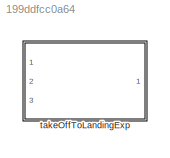
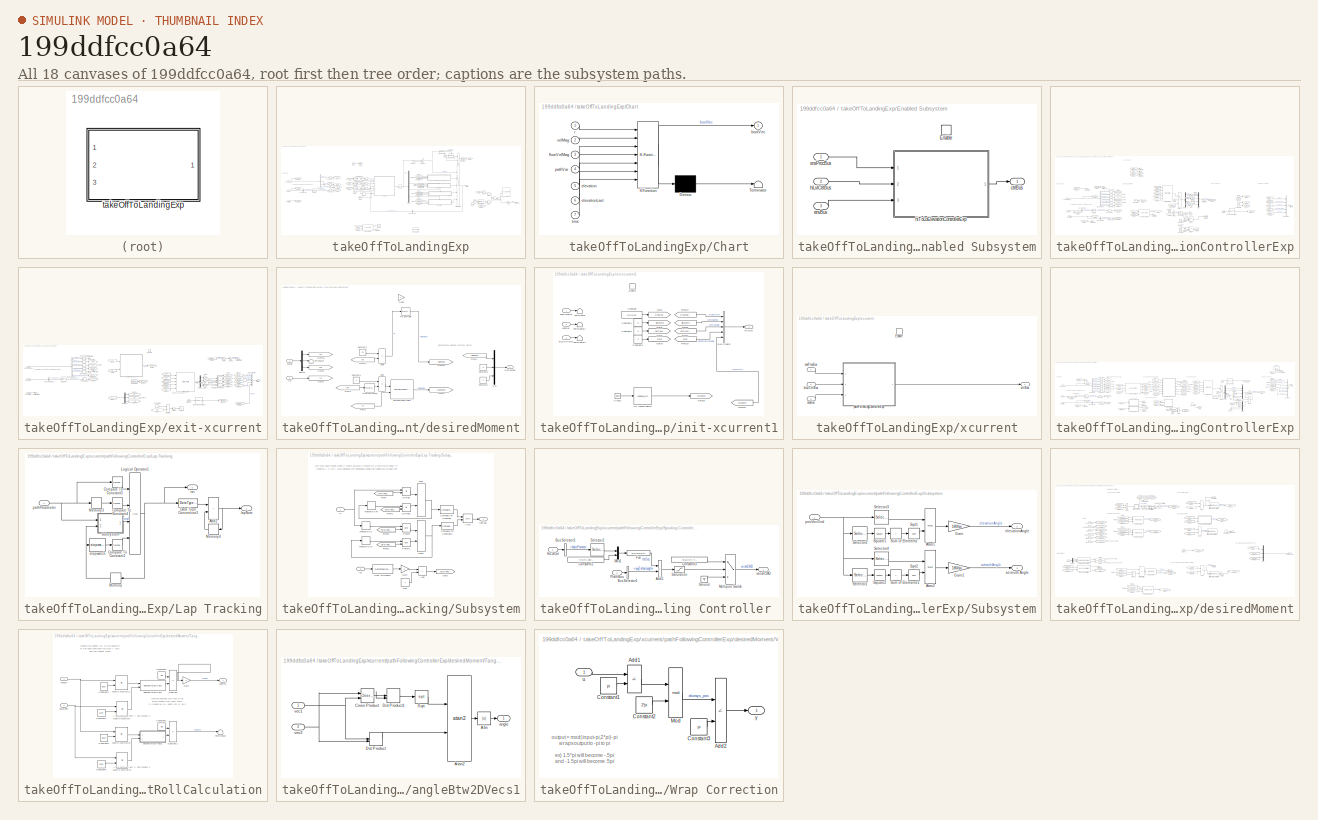
[diagram: thumbnail index - all 18 canvases of the model, root first then tree order]
MODEL slx_199ddfcc0a64
KIND library
CONFIG AbsTol = auto
CONFIG EnableMultiTasking = off
CONFIG FixedStep = auto
CONFIG MaxStep = auto
CONFIG MinStep = auto
CONFIG RelTol = 1e-3
CONFIG SampleTimeConstraint = Unconstrained
CONFIG SolverName = VariableStepAuto
CONFIG StartTime = 0.0
CONFIG StopTime = 10.0
BLOCK [SubSystem] takeOffToLandingExp
  InitFcn = initializeBussesFromBlock(gcb)
  LoadFcn = initializeBussesFromBlock(gcb)
  Ports = [3, 1]
  RequestExecContextInheritance = off
  StartFcn = initializeBussesFromBlock(gcb)
BLOCK [Sum] takeOffToLandingExp/Add
  Commented = on
  IconShape = rectangular
  Ports = [2, 1]
BLOCK [BusAssignment] takeOffToLandingExp/Bus Assignment
  AssignedSignals = ctrlSurfDeflection
  Commented = on
  Ports = [2, 1]
BLOCK [BusSelector] takeOffToLandingExp/Bus Selector
  OutputSignals = positionVec,velocityVec,gndStnPositionVec
  Ports = [1, 3]
BLOCK [BusSelector] takeOffToLandingExp/Bus Selector1
  OutputSignals = vhclFlowVecs
  Ports = [1, 1]
BLOCK [BusSelector] takeOffToLandingExp/Bus Selector3
  OutputSignals = closestPathVariable
  Ports = [1, 1]
BLOCK [SubSystem] takeOffToLandingExp/Chart
  AncestorBlock = takeoffToLanding_cl/takeoffToLanding/Chart
  ErrorFcn = Stateflow.Translate.translate
  PermitHierarchicalResolution = ExplicitOnly
  Ports = [7, 1]
  RequestExecContextInheritance = off
  SFBlockType = Chart
  TreatAsAtomicUnit = on
BLOCK [Demux] takeOffToLandingExp/Chart/ Demux 
  Outputs = 1
  Ports = [1, 1]
BLOCK [S-Function] takeOffToLandingExp/Chart/ SFunction 
  EnableBusSupport = off
  FunctionName = sf_sfun
  Parameters = gain23,gain41,maxR,nonCrossSpoolGain
  PortCounts = [7 2]
  Ports = [7, 2]
  SFcnIsStateOwnerBlock = off
  SFunctionDeploymentMode = off
  Tag = Stateflow S-Function 5
BLOCK [Terminator] takeOffToLandingExp/Chart/ Terminator 
BLOCK [Outport] takeOffToLandingExp/Chart/boolVec
  VectorParamsAs1DForOutWhenUnconnected = off
BLOCK [Inport] takeOffToLandingExp/Chart/elevation
  Port = 5
BLOCK [Inport] takeOffToLandingExp/Chart/elevationLast
  Port = 6
BLOCK [Inport] takeOffToLandingExp/Chart/flowVelMag
  Port = 3
BLOCK [Inport] takeOffToLandingExp/Chart/pathVar
  Port = 4
BLOCK [Inport] takeOffToLandingExp/Chart/r
BLOCK [Inport] takeOffToLandingExp/Chart/time
  Port = 7
BLOCK [Inport] takeOffToLandingExp/Chart/velMag
  Port = 2
BLOCK [Clock] takeOffToLandingExp/Clock
BLOCK [Clock] takeOffToLandingExp/Clock1
BLOCK [Reference] takeOffToLandingExp/Compare To Constant  REF=simulink/Logic and Bit
Operations/Compare
To Constant
  Ports = [1, 1]
  SourceBlock = simulink/Logic and Bit\nOperations/Compare\nTo Constant
  SourceProductBaseCode = SL
  SourceType = Compare To Constant
BLOCK [Constant] takeOffToLandingExp/Constant
  Value = 1:4
BLOCK [Demux] takeOffToLandingExp/Demux
  Ports = [1, 4]
BLOCK [Reference] takeOffToLandingExp/Detect Change  REF=simulink/Logic and Bit
Operations/Detect
Change
  Ports = [1, 1]
  SourceBlock = simulink/Logic and Bit\nOperations/Detect\nChange
  SourceProductBaseCode = SL
  SourceType = Detect Change
BLOCK [DotProduct] takeOffToLandingExp/Dot Product
  OutDataTypeStr = Inherit: Inherit via internal rule
BLOCK [SubSystem] takeOffToLandingExp/Enabled Subsystem
  Ports = [3, 1, 1]
  RequestExecContextInheritance = off
  TreatAsAtomicUnit = on
BLOCK [EnablePort] takeOffToLandingExp/Enabled Subsystem/Enable
  Ports = []
BLOCK [Outport] takeOffToLandingExp/Enabled Subsystem/ctrlBus
  OutDataTypeStr = Bus: fltCtrlBus
  VectorParamsAs1DForOutWhenUnconnected = off
BLOCK [Inport] takeOffToLandingExp/Enabled Subsystem/envBus
  OutDataTypeStr = Bus: envBus
  Port = 3
BLOCK [Inport] takeOffToLandingExp/Enabled Subsystem/hiLvlCtrlBus
  OutDataTypeStr = Bus: hiLvlCtrlBus
  Port = 2
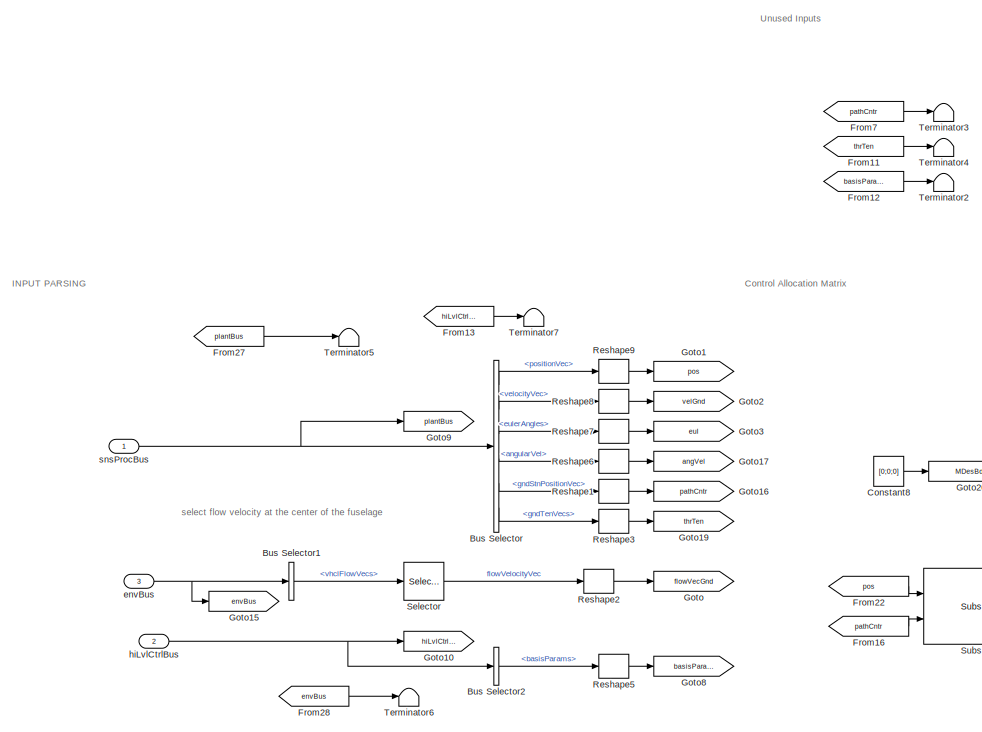
[diagram: takeOffToLandingExp/Enabled Subsystem/hiToLoElevationControllerExp - part 1/3, left side, full height]
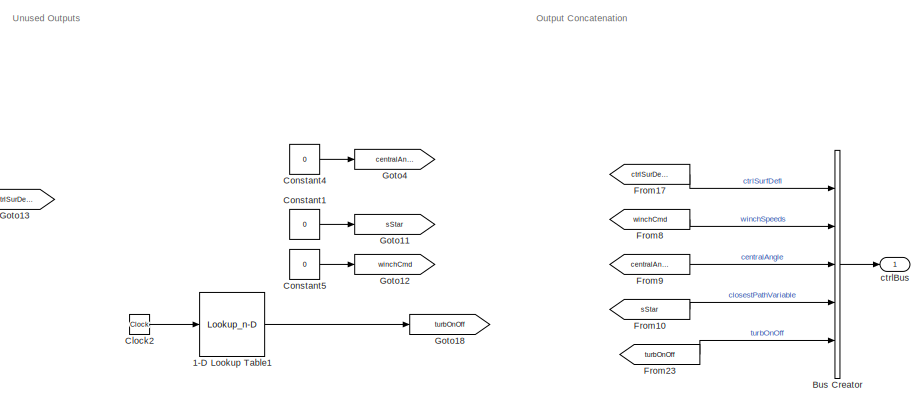
[diagram: takeOffToLandingExp/Enabled Subsystem/hiToLoElevationControllerExp - part 2/3, middle right region]
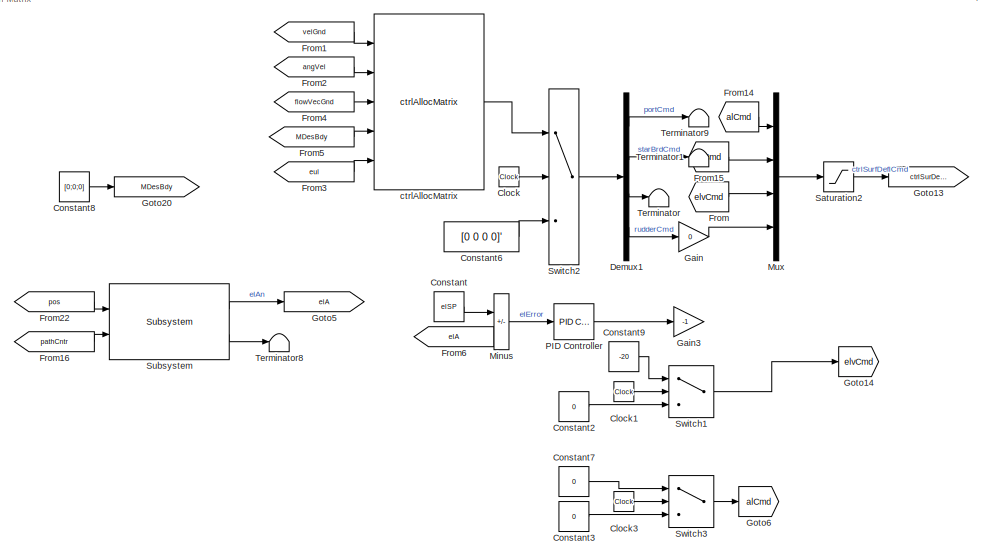
[diagram: takeOffToLandingExp/Enabled Subsystem/hiToLoElevationControllerExp - part 3/3, bottom center region]
BLOCK [SubSystem] takeOffToLandingExp/Enabled Subsystem/hiToLoElevationControllerExp
  AncestorBlock = hiToLoElevationControllerExp/hiToLoElevationControllerExp
  InitFcn = initializeBussesFromBlock(gcb)
  LoadFcn = initializeBussesFromBlock(gcb)
  Ports = [3, 1]
  RequestExecContextInheritance = off
  StartFcn = initializeBussesFromBlock(gcb)
BLOCK [Lookup_n-D] takeOffToLandingExp/Enabled Subsystem/hiToLoElevationControllerExp/1-D Lookup Table1
  BreakpointsForDimension1 = [0 1000 2000]
  InputPortMap = u0
  InternalRulePriority = Speed
  InterpMethod = Flat
  NumberOfTableDimensions = 1
  Ports = [1, 1]
  RndMeth = Simplest
  Table = [0 0 0]
BLOCK [BusCreator] takeOffToLandingExp/Enabled Subsystem/hiToLoElevationControllerExp/Bus Creator
  DisplayOption = bar
  InheritFromInputs = off
  Inputs = 5
  OutDataTypeStr = Bus: fltCtrlBus
  Ports = [5, 1]
BLOCK [BusSelector] takeOffToLandingExp/Enabled Subsystem/hiToLoElevationControllerExp/Bus Selector
  OutputSignals = positionVec,velocityVec,eulerAngles,angularVel,gndStnPositionVec,gndTenVecs
  Ports = [1, 6]
BLOCK [BusSelector] takeOffToLandingExp/Enabled Subsystem/hiToLoElevationControllerExp/Bus Selector1
  OutputSignals = vhclFlowVecs
  Ports = [1, 1]
BLOCK [BusSelector] takeOffToLandingExp/Enabled Subsystem/hiToLoElevationControllerExp/Bus Selector2
  OutputSignals = basisParams
  Ports = [1, 1]
BLOCK [Clock] takeOffToLandingExp/Enabled Subsystem/hiToLoElevationControllerExp/Clock
BLOCK [Clock] takeOffToLandingExp/Enabled Subsystem/hiToLoElevationControllerExp/Clock1
BLOCK [Clock] takeOffToLandingExp/Enabled Subsystem/hiToLoElevationControllerExp/Clock2
BLOCK [Clock] takeOffToLandingExp/Enabled Subsystem/hiToLoElevationControllerExp/Clock3
BLOCK [Constant] takeOffToLandingExp/Enabled Subsystem/hiToLoElevationControllerExp/Constant
  Commented = on
  Value = elSP
BLOCK [Constant] takeOffToLandingExp/Enabled Subsystem/hiToLoElevationControllerExp/Constant1
  Value = 0
BLOCK [Constant] takeOffToLandingExp/Enabled Subsystem/hiToLoElevationControllerExp/Constant2
  Value = 0
BLOCK [Constant] takeOffToLandingExp/Enabled Subsystem/hiToLoElevationControllerExp/Constant3
  Value = 0
BLOCK [Constant] takeOffToLandingExp/Enabled Subsystem/hiToLoElevationControllerExp/Constant4
  Value = 0
BLOCK [Constant] takeOffToLandingExp/Enabled Subsystem/hiToLoElevationControllerExp/Constant5
  Value = 0
BLOCK [Constant] takeOffToLandingExp/Enabled Subsystem/hiToLoElevationControllerExp/Constant6
  Value = [0 0 0 0]'
BLOCK [Constant] takeOffToLandingExp/Enabled Subsystem/hiToLoElevationControllerExp/Constant7
  Value = 0
BLOCK [Constant] takeOffToLandingExp/Enabled Subsystem/hiToLoElevationControllerExp/Constant8
  Value = [0;0;0]
BLOCK [Constant] takeOffToLandingExp/Enabled Subsystem/hiToLoElevationControllerExp/Constant9
  Value = -20
BLOCK [Demux] takeOffToLandingExp/Enabled Subsystem/hiToLoElevationControllerExp/Demux1
  Ports = [1, 4]
BLOCK [From] takeOffToLandingExp/Enabled Subsystem/hiToLoElevationControllerExp/From
  GotoTag = elvCmd
BLOCK [From] takeOffToLandingExp/Enabled Subsystem/hiToLoElevationControllerExp/From1
  GotoTag = velGnd
BLOCK [From] takeOffToLandingExp/Enabled Subsystem/hiToLoElevationControllerExp/From10
  GotoTag = sStar
BLOCK [From] takeOffToLandingExp/Enabled Subsystem/hiToLoElevationControllerExp/From11
  GotoTag = thrTen
BLOCK [From] takeOffToLandingExp/Enabled Subsystem/hiToLoElevationControllerExp/From12
  GotoTag = basisParams
BLOCK [From] takeOffToLandingExp/Enabled Subsystem/hiToLoElevationControllerExp/From13
  GotoTag = hiLvlCtrlBus
BLOCK [From] takeOffToLandingExp/Enabled Subsystem/hiToLoElevationControllerExp/From14
  GotoTag = alCmd
BLOCK [From] takeOffToLandingExp/Enabled Subsystem/hiToLoElevationControllerExp/From15
  GotoTag = alCmd
BLOCK [From] takeOffToLandingExp/Enabled Subsystem/hiToLoElevationControllerExp/From16
  GotoTag = pathCntr
BLOCK [From] takeOffToLandingExp/Enabled Subsystem/hiToLoElevationControllerExp/From17
  GotoTag = ctrlSurDefl
BLOCK [From] takeOffToLandingExp/Enabled Subsystem/hiToLoElevationControllerExp/From2
  GotoTag = angVel
BLOCK [From] takeOffToLandingExp/Enabled Subsystem/hiToLoElevationControllerExp/From22
  GotoTag = pos
BLOCK [From] takeOffToLandingExp/Enabled Subsystem/hiToLoElevationControllerExp/From23
  GotoTag = turbOnOff
BLOCK [From] takeOffToLandingExp/Enabled Subsystem/hiToLoElevationControllerExp/From27
  GotoTag = plantBus
BLOCK [From] takeOffToLandingExp/Enabled Subsystem/hiToLoElevationControllerExp/From28
  GotoTag = envBus
BLOCK [From] takeOffToLandingExp/Enabled Subsystem/hiToLoElevationControllerExp/From3
  GotoTag = eul
BLOCK [From] takeOffToLandingExp/Enabled Subsystem/hiToLoElevationControllerExp/From4
  GotoTag = flowVecGnd
BLOCK [From] takeOffToLandingExp/Enabled Subsystem/hiToLoElevationControllerExp/From5
  GotoTag = MDesBdy
BLOCK [From] takeOffToLandingExp/Enabled Subsystem/hiToLoElevationControllerExp/From6
  Commented = on
  GotoTag = elA
BLOCK [From] takeOffToLandingExp/Enabled Subsystem/hiToLoElevationControllerExp/From7
  GotoTag = pathCntr
BLOCK [From] takeOffToLandingExp/Enabled Subsystem/hiToLoElevationControllerExp/From8
  GotoTag = winchCmd
BLOCK [From] takeOffToLandingExp/Enabled Subsystem/hiToLoElevationControllerExp/From9
  GotoTag = centralAngle
BLOCK [Gain] takeOffToLandingExp/Enabled Subsystem/hiToLoElevationControllerExp/Gain
  Gain = 0
BLOCK [Gain] takeOffToLandingExp/Enabled Subsystem/hiToLoElevationControllerExp/Gain3
  Commented = on
  Gain = -1
BLOCK [Goto] takeOffToLandingExp/Enabled Subsystem/hiToLoElevationControllerExp/Goto
  GotoTag = flowVecGnd
BLOCK [Goto] takeOffToLandingExp/Enabled Subsystem/hiToLoElevationControllerExp/Goto1
  GotoTag = pos
BLOCK [Goto] takeOffToLandingExp/Enabled Subsystem/hiToLoElevationControllerExp/Goto10
  GotoTag = hiLvlCtrlBus
BLOCK [Goto] takeOffToLandingExp/Enabled Subsystem/hiToLoElevationControllerExp/Goto11
  GotoTag = sStar
BLOCK [Goto] takeOffToLandingExp/Enabled Subsystem/hiToLoElevationControllerExp/Goto12
  GotoTag = winchCmd
BLOCK [Goto] takeOffToLandingExp/Enabled Subsystem/hiToLoElevationControllerExp/Goto13
  GotoTag = ctrlSurDefl
BLOCK [Goto] takeOffToLandingExp/Enabled Subsystem/hiToLoElevationControllerExp/Goto14
  GotoTag = elvCmd
BLOCK [Goto] takeOffToLandingExp/Enabled Subsystem/hiToLoElevationControllerExp/Goto15
  GotoTag = envBus
BLOCK [Goto] takeOffToLandingExp/Enabled Subsystem/hiToLoElevationControllerExp/Goto16
  GotoTag = pathCntr
BLOCK [Goto] takeOffToLandingExp/Enabled Subsystem/hiToLoElevationControllerExp/Goto17
  GotoTag = angVel
BLOCK [Goto] takeOffToLandingExp/Enabled Subsystem/hiToLoElevationControllerExp/Goto18
  GotoTag = turbOnOff
BLOCK [Goto] takeOffToLandingExp/Enabled Subsystem/hiToLoElevationControllerExp/Goto19
  GotoTag = thrTen
BLOCK [Goto] takeOffToLandingExp/Enabled Subsystem/hiToLoElevationControllerExp/Goto2
  GotoTag = velGnd
BLOCK [Goto] takeOffToLandingExp/Enabled Subsystem/hiToLoElevationControllerExp/Goto20
  GotoTag = MDesBdy
BLOCK [Goto] takeOffToLandingExp/Enabled Subsystem/hiToLoElevationControllerExp/Goto3
  GotoTag = eul
BLOCK [Goto] takeOffToLandingExp/Enabled Subsystem/hiToLoElevationControllerExp/Goto4
  GotoTag = centralAngle
BLOCK [Goto] takeOffToLandingExp/Enabled Subsystem/hiToLoElevationControllerExp/Goto5
  GotoTag = elA
BLOCK [Goto] takeOffToLandingExp/Enabled Subsystem/hiToLoElevationControllerExp/Goto6
  GotoTag = alCmd
BLOCK [Goto] takeOffToLandingExp/Enabled Subsystem/hiToLoElevationControllerExp/Goto8
  GotoTag = basisParams
BLOCK [Goto] takeOffToLandingExp/Enabled Subsystem/hiToLoElevationControllerExp/Goto9
  GotoTag = plantBus
BLOCK [Sum] takeOffToLandingExp/Enabled Subsystem/hiToLoElevationControllerExp/Minus
  Commented = on
  IconShape = rectangular
  Inputs = +-
  Ports = [2, 1]
BLOCK [Mux] takeOffToLandingExp/Enabled Subsystem/hiToLoElevationControllerExp/Mux
  DisplayOption = bar
  Ports = [4, 1]
BLOCK [Reference] takeOffToLandingExp/Enabled Subsystem/hiToLoElevationControllerExp/PID Controller  REF=slpidlib/PID Controller
  Commented = on
  Ports = [1, 1]
  SourceBlock = slpidlib/PID Controller
  SourceProductBaseCode = SL
  SourceType = PID 1dof
BLOCK [Reshape] takeOffToLandingExp/Enabled Subsystem/hiToLoElevationControllerExp/Reshape1
  OutputDimensionality = Column vector (2-D)
  Ports = [1, 1]
BLOCK [Reshape] takeOffToLandingExp/Enabled Subsystem/hiToLoElevationControllerExp/Reshape2
  OutputDimensionality = Column vector (2-D)
  Ports = [1, 1]
BLOCK [Reshape] takeOffToLandingExp/Enabled Subsystem/hiToLoElevationControllerExp/Reshape3
  OutputDimensionality = Column vector (2-D)
  Ports = [1, 1]
BLOCK [Reshape] takeOffToLandingExp/Enabled Subsystem/hiToLoElevationControllerExp/Reshape5
  OutputDimensionality = Column vector (2-D)
  Ports = [1, 1]
BLOCK [Reshape] takeOffToLandingExp/Enabled Subsystem/hiToLoElevationControllerExp/Reshape6
  OutputDimensionality = Column vector (2-D)
  Ports = [1, 1]
BLOCK [Reshape] takeOffToLandingExp/Enabled Subsystem/hiToLoElevationControllerExp/Reshape7
  OutputDimensionality = Column vector (2-D)
  Ports = [1, 1]
BLOCK [Reshape] takeOffToLandingExp/Enabled Subsystem/hiToLoElevationControllerExp/Reshape8
  OutputDimensionality = Column vector (2-D)
  Ports = [1, 1]
BLOCK [Reshape] takeOffToLandingExp/Enabled Subsystem/hiToLoElevationControllerExp/Reshape9
  OutputDimensionality = Column vector (2-D)
  Ports = [1, 1]
BLOCK [Saturate] takeOffToLandingExp/Enabled Subsystem/hiToLoElevationControllerExp/Saturation2
  LowerLimit = pathCtrl.controlSigMax.lowerLimit.Value
  UpperLimit = pathCtrl.controlSigMax.upperLimit.Value
BLOCK [Selector] takeOffToLandingExp/Enabled Subsystem/hiToLoElevationControllerExp/Selector
  IndexOptions = Select all,Index vector (dialog)
  Indices = [1 3],5
  InputPortWidth = 3
  NumberOfDimensions = 2
  OutputSizes = 1,1
  Ports = [1, 1]
BLOCK [Reference] takeOffToLandingExp/Enabled Subsystem/hiToLoElevationControllerExp/Subsystem  REF=hiToLoElevationControllerExp/hiToLoElevationControllerExp/Subsystem
  Ports = [2, 2]
  SourceBlock = hiToLoElevationControllerExp/hiToLoElevationControllerExp/Subsystem
BLOCK [Switch] takeOffToLandingExp/Enabled Subsystem/hiToLoElevationControllerExp/Switch1
  Criteria = u2 > Threshold
  InputSameDT = off
  SaturateOnIntegerOverflow = off
  Threshold = pathCtrl.startControl.Value
BLOCK [Switch] takeOffToLandingExp/Enabled Subsystem/hiToLoElevationControllerExp/Switch2
  Criteria = u2 > Threshold
  InputSameDT = off
  SaturateOnIntegerOverflow = off
  Threshold = pathCtrl.startControl.Value
BLOCK [Switch] takeOffToLandingExp/Enabled Subsystem/hiToLoElevationControllerExp/Switch3
  Criteria = u2 > Threshold
  InputSameDT = off
  SaturateOnIntegerOverflow = off
  Threshold = pathCtrl.startControl.Value
BLOCK [Terminator] takeOffToLandingExp/Enabled Subsystem/hiToLoElevationControllerExp/Terminator
BLOCK [Terminator] takeOffToLandingExp/Enabled Subsystem/hiToLoElevationControllerExp/Terminator1
BLOCK [Terminator] takeOffToLandingExp/Enabled Subsystem/hiToLoElevationControllerExp/Terminator2
BLOCK [Terminator] takeOffToLandingExp/Enabled Subsystem/hiToLoElevationControllerExp/Terminator3
BLOCK [Terminator] takeOffToLandingExp/Enabled Subsystem/hiToLoElevationControllerExp/Terminator4
BLOCK [Terminator] takeOffToLandingExp/Enabled Subsystem/hiToLoElevationControllerExp/Terminator5
BLOCK [Terminator] takeOffToLandingExp/Enabled Subsystem/hiToLoElevationControllerExp/Terminator6
BLOCK [Terminator] takeOffToLandingExp/Enabled Subsystem/hiToLoElevationControllerExp/Terminator7
BLOCK [Terminator] takeOffToLandingExp/Enabled Subsystem/hiToLoElevationControllerExp/Terminator8
BLOCK [Terminator] takeOffToLandingExp/Enabled Subsystem/hiToLoElevationControllerExp/Terminator9
BLOCK [Reference] takeOffToLandingExp/Enabled Subsystem/hiToLoElevationControllerExp/ctrlAllocMatrix  REF=ctrlAllocMatrix_cl/ctrlAllocMatrix
  Ports = [5, 1]
  SourceBlock = ctrlAllocMatrix_cl/ctrlAllocMatrix
BLOCK [Outport] takeOffToLandingExp/Enabled Subsystem/hiToLoElevationControllerExp/ctrlBus
  OutDataTypeStr = Bus: fltCtrlBus
BLOCK [Inport] takeOffToLandingExp/Enabled Subsystem/hiToLoElevationControllerExp/envBus
  OutDataTypeStr = Bus: envBus
  Port = 3
BLOCK [Inport] takeOffToLandingExp/Enabled Subsystem/hiToLoElevationControllerExp/hiLvlCtrlBus
  OutDataTypeStr = Bus: hiLvlCtrlBus
  Port = 2
BLOCK [Inport] takeOffToLandingExp/Enabled Subsystem/hiToLoElevationControllerExp/snsProcBus
  OutDataTypeStr = Bus: sensorsProcessingBus
BLOCK [Inport] takeOffToLandingExp/Enabled Subsystem/snsProcBus
  OutDataTypeStr = Bus: sensorsProcessingBus
BLOCK [From] takeOffToLandingExp/From
  Commented = on
  GotoTag = boolFilt
BLOCK [From] takeOffToLandingExp/From1
  GotoTag = pos
BLOCK [From] takeOffToLandingExp/From10
  GotoTag = snsProcBus
BLOCK [From] takeOffToLandingExp/From11
  GotoTag = envBus
BLOCK [From] takeOffToLandingExp/From12
  GotoTag = hiLvlCtrlBus
BLOCK [From] takeOffToLandingExp/From13
  GotoTag = pos
BLOCK [From] takeOffToLandingExp/From16
  GotoTag = snsProcBus
BLOCK [From] takeOffToLandingExp/From17
  GotoTag = envBus
BLOCK [From] takeOffToLandingExp/From18
  GotoTag = hiLvlCtrlBus
BLOCK [From] takeOffToLandingExp/From19
  GotoTag = snsProcBus
BLOCK [From] takeOffToLandingExp/From2
  GotoTag = velGnd
BLOCK [From] takeOffToLandingExp/From20
  GotoTag = envBus
BLOCK [From] takeOffToLandingExp/From21
  GotoTag = hiLvlCtrlBus
BLOCK [From] takeOffToLandingExp/From22
  Commented = on
  GotoTag = boolFilt
BLOCK [From] takeOffToLandingExp/From23
  Commented = on
  GotoTag = rst
BLOCK [From] takeOffToLandingExp/From3
  GotoTag = flowVecGnd
BLOCK [From] takeOffToLandingExp/From4
  GotoTag = elA
BLOCK [From] takeOffToLandingExp/From5
  GotoTag = snsProcBus
BLOCK [From] takeOffToLandingExp/From6
  GotoTag = time
BLOCK [From] takeOffToLandingExp/From7
  GotoTag = envBus
BLOCK [From] takeOffToLandingExp/From8
  GotoTag = hiLvlCtrlBus
BLOCK [From] takeOffToLandingExp/From9
  GotoTag = pathCntr
BLOCK [Gain] takeOffToLandingExp/Gain1
  Commented = on
BLOCK [Goto] takeOffToLandingExp/Goto
  GotoTag = flowVecGnd
BLOCK [Goto] takeOffToLandingExp/Goto1
  GotoTag = pos
BLOCK [Goto] takeOffToLandingExp/Goto10
  GotoTag = hiLvlCtrlBus
BLOCK [Goto] takeOffToLandingExp/Goto15
  GotoTag = envBus
BLOCK [Goto] takeOffToLandingExp/Goto2
  GotoTag = velGnd
BLOCK [Goto] takeOffToLandingExp/Goto3
  GotoTag = boolFilt
BLOCK [Goto] takeOffToLandingExp/Goto4
  GotoTag = rst
BLOCK [Goto] takeOffToLandingExp/Goto5
  GotoTag = elA
BLOCK [Goto] takeOffToLandingExp/Goto6
  GotoTag = time
BLOCK [Goto] takeOffToLandingExp/Goto7
  GotoTag = pathCntr
BLOCK [Goto] takeOffToLandingExp/Goto9
  GotoTag = snsProcBus
BLOCK [Memory] takeOffToLandingExp/Memory
  Commented = on
  InitialCondition = [0;0;0;0]
BLOCK [Memory] takeOffToLandingExp/Memory1
  InitialCondition = [1 0 0 0]
BLOCK [Memory] takeOffToLandingExp/Memory2
  InitialCondition = .36
BLOCK [Sum] takeOffToLandingExp/Minus
  IconShape = rectangular
  Inputs = -+
  Ports = [2, 1]
BLOCK [Product] takeOffToLandingExp/Multiply
  Commented = on
  Ports = [2, 1]
BLOCK [Product] takeOffToLandingExp/Multiply1
  Commented = on
  Ports = [2, 1]
BLOCK [MultiPortSwitch] takeOffToLandingExp/Multiport Switch
  DataPortIndices = {1,2,3,4,5,6}
  DiagnosticForDefault = Warning
  InputSameDT = off
  Inputs = 4
  Ports = [5, 1]
  SaturateOnIntegerOverflow = off
BLOCK [Logic] takeOffToLandingExp/NOT
  AllPortsSameDT = off
  Commented = on
  Operator = NOT
  OutDataTypeStr = boolean
  Ports = [1, 1]
BLOCK [Reshape] takeOffToLandingExp/Reshape
  Commented = on
  Ports = [1, 1]
BLOCK [Reshape] takeOffToLandingExp/Reshape1
  Ports = [1, 1]
BLOCK [Reshape] takeOffToLandingExp/Reshape2
  OutputDimensionality = Column vector (2-D)
  Ports = [1, 1]
BLOCK [Reshape] takeOffToLandingExp/Reshape3
  Ports = [1, 1]
BLOCK [Reshape] takeOffToLandingExp/Reshape4
  Ports = [1, 1]
BLOCK [Reshape] takeOffToLandingExp/Reshape5
  OutputDimensionality = Column vector (2-D)
  Ports = [1, 1]
BLOCK [Reshape] takeOffToLandingExp/Reshape8
  OutputDimensionality = Column vector (2-D)
  Ports = [1, 1]
BLOCK [Reshape] takeOffToLandingExp/Reshape9
  OutputDimensionality = Column vector (2-D)
  Ports = [1, 1]
BLOCK [Reference] takeOffToLandingExp/Sample and Hold  REF=dspsigops/Sample
and Hold
  Ports = [1, 1, 0, 1]
  SourceBlock = dspsigops/Sample\nand Hold
  SourceProductBaseCode = DS
  SourceType = Sample and Hold
BLOCK [Selector] takeOffToLandingExp/Selector
  IndexOptions = Select all,Index vector (dialog)
  Indices = [1 3],5
  InputPortWidth = 3
  NumberOfDimensions = 2
  OutputSizes = 1,1
  Ports = [1, 1]
BLOCK [Sqrt] takeOffToLandingExp/Sqrt
BLOCK [Sqrt] takeOffToLandingExp/Sqrt1
BLOCK [Sqrt] takeOffToLandingExp/Sqrt2
BLOCK [Math] takeOffToLandingExp/Square
  Operator = square
  Ports = [1, 1]
BLOCK [Math] takeOffToLandingExp/Square1
  Operator = square
  Ports = [1, 1]
BLOCK [Math] takeOffToLandingExp/Square2
  Operator = square
  Ports = [1, 1]
BLOCK [Reference] takeOffToLandingExp/Subsystem  REF=takeoffToLanding_cl/takeoffToLanding/Subsystem
  Commented = on
  Ports = [5, 1]
  SourceBlock = takeoffToLanding_cl/takeoffToLanding/Subsystem
  SourceType = SubSystem
BLOCK [Reference] takeOffToLandingExp/Subsystem2  REF=hiToLoElevationControllerExp/hiToLoElevationControllerExp/Subsystem
  Ports = [2, 2]
  SourceBlock = hiToLoElevationControllerExp/hiToLoElevationControllerExp/Subsystem
BLOCK [Sum] takeOffToLandingExp/Sum of Elements
  IconShape = rectangular
  Inputs = +
  Ports = [1, 1]
BLOCK [Sum] takeOffToLandingExp/Sum of Elements1
  IconShape = rectangular
  Inputs = +
  Ports = [1, 1]
BLOCK [Sum] takeOffToLandingExp/Sum of Elements2
  IconShape = rectangular
  Inputs = +
  Ports = [1, 1]
BLOCK [Terminator] takeOffToLandingExp/Terminator1
BLOCK [Terminator] takeOffToLandingExp/Terminator2
BLOCK [Outport] takeOffToLandingExp/ctrlBus
  OutDataTypeStr = Bus: fltCtrlBus
BLOCK [Inport] takeOffToLandingExp/envBus
  OutDataTypeStr = Bus: envBus
  Port = 2
BLOCK [SubSystem] takeOffToLandingExp/exit-xcurrent
  AncestorBlock = takeoffToLanding_cl/takeoffToLanding/exit-xcurrent
  Ports = [3, 1, 1]
  RequestExecContextInheritance = off
  TreatAsAtomicUnit = on
BLOCK [Lookup_n-D] takeOffToLandingExp/exit-xcurrent/1-D Lookup Table1
  BreakpointsForDimension1 = [0 1000 2000]
  InputPortMap = u0
  InternalRulePriority = Speed
  InterpMethod = Flat
  NumberOfTableDimensions = 1
  Ports = [1, 1]
  RndMeth = Simplest
  Table = [0 0 0]
BLOCK [BusCreator] takeOffToLandingExp/exit-xcurrent/Bus Creator
  DisplayOption = bar
  InheritFromInputs = off
  Inputs = 5
  OutDataTypeStr = Bus: fltCtrlBus
  Ports = [5, 1]
BLOCK [BusSelector] takeOffToLandingExp/exit-xcurrent/Bus Selector
  OutputSignals = positionVec,velocityVec,eulerAngles,angularVel,gndStnPositionVec,avgTetherLength
  Ports = [1, 6]
BLOCK [BusSelector] takeOffToLandingExp/exit-xcurrent/Bus Selector1
  OutputSignals = vhclFlowVecs
  Ports = [1, 1]
BLOCK [Clock] takeOffToLandingExp/exit-xcurrent/Clock2
BLOCK [Constant] takeOffToLandingExp/exit-xcurrent/Constant1
  Value = 0
BLOCK [Constant] takeOffToLandingExp/exit-xcurrent/Constant2
  Value = 0
BLOCK [Constant] takeOffToLandingExp/exit-xcurrent/Constant3
  Value = 0
BLOCK [Constant] takeOffToLandingExp/exit-xcurrent/Constant4
  Commented = on
  Value = zeros(3,1)
BLOCK [Constant] takeOffToLandingExp/exit-xcurrent/Constant6
  Value = 0
BLOCK [Demux] takeOffToLandingExp/exit-xcurrent/Demux
  Ports = [1, 4]
BLOCK [Demux] takeOffToLandingExp/exit-xcurrent/Demux1
  Outputs = 3
  Ports = [1, 3]
BLOCK [EnablePort] takeOffToLandingExp/exit-xcurrent/Enable
  Ports = []
BLOCK [From] takeOffToLandingExp/exit-xcurrent/From
  GotoTag = rst
BLOCK [From] takeOffToLandingExp/exit-xcurrent/From1
  GotoTag = ctrlSurDefl
BLOCK [From] takeOffToLandingExp/exit-xcurrent/From10
  GotoTag = sStar
BLOCK [From] takeOffToLandingExp/exit-xcurrent/From12
  GotoTag = flowVecGnd
BLOCK [From] takeOffToLandingExp/exit-xcurrent/From14
  GotoTag = velGnd
BLOCK [From] takeOffToLandingExp/exit-xcurrent/From17
  GotoTag = ctrlSurDefl
BLOCK [From] takeOffToLandingExp/exit-xcurrent/From18
  GotoTag = MDesBdy
BLOCK [From] takeOffToLandingExp/exit-xcurrent/From2
  GotoTag = eul
BLOCK [From] takeOffToLandingExp/exit-xcurrent/From23
  GotoTag = turbOnOff
BLOCK [From] takeOffToLandingExp/exit-xcurrent/From24
  GotoTag = eul
BLOCK [From] takeOffToLandingExp/exit-xcurrent/From3
  GotoTag = eul
BLOCK [From] takeOffToLandingExp/exit-xcurrent/From5
  GotoTag = el
BLOCK [From] takeOffToLandingExp/exit-xcurrent/From6
  GotoTag = pitch
BLOCK [From] takeOffToLandingExp/exit-xcurrent/From7
  GotoTag = angVel
BLOCK [From] takeOffToLandingExp/exit-xcurrent/From8
  GotoTag = winchCmd
BLOCK [From] takeOffToLandingExp/exit-xcurrent/From9
  GotoTag = centralAngle
BLOCK [Gain] takeOffToLandingExp/exit-xcurrent/Gain
BLOCK [Gain] takeOffToLandingExp/exit-xcurrent/Gain1
BLOCK [Gain] takeOffToLandingExp/exit-xcurrent/Gain2
BLOCK [Gain] takeOffToLandingExp/exit-xcurrent/Gain3
BLOCK [Gain] takeOffToLandingExp/exit-xcurrent/Gain4
  Gain = 0
BLOCK [Gain] takeOffToLandingExp/exit-xcurrent/Gain5
  Gain = 0
BLOCK [Goto] takeOffToLandingExp/exit-xcurrent/Goto
  GotoTag = ctrlSurDefl
BLOCK [Goto] takeOffToLandingExp/exit-xcurrent/Goto1
  GotoTag = winchCmd
BLOCK [Goto] takeOffToLandingExp/exit-xcurrent/Goto10
  GotoTag = pitch
BLOCK [Goto] takeOffToLandingExp/exit-xcurrent/Goto11
  Commented = on
  GotoTag = tetherLength
BLOCK [Goto] takeOffToLandingExp/exit-xcurrent/Goto12
  GotoTag = el
BLOCK [Goto] takeOffToLandingExp/exit-xcurrent/Goto13
  Commented = on
  GotoTag = MDesBdy
BLOCK [Goto] takeOffToLandingExp/exit-xcurrent/Goto15
  Commented = on
  GotoTag = roll
BLOCK [Goto] takeOffToLandingExp/exit-xcurrent/Goto18
  GotoTag = turbOnOff
BLOCK [Goto] takeOffToLandingExp/exit-xcurrent/Goto2
  GotoTag = centralAngle
BLOCK [Goto] takeOffToLandingExp/exit-xcurrent/Goto3
  GotoTag = sStar
BLOCK [Goto] takeOffToLandingExp/exit-xcurrent/Goto4
  GotoTag = flowVecGnd
BLOCK [Goto] takeOffToLandingExp/exit-xcurrent/Goto5
  GotoTag = MDesBdy
BLOCK [Goto] takeOffToLandingExp/exit-xcurrent/Goto6
  GotoTag = velGnd
BLOCK [Goto] takeOffToLandingExp/exit-xcurrent/Goto7
  GotoTag = eul
BLOCK [Goto] takeOffToLandingExp/exit-xcurrent/Goto8
  GotoTag = angVel
BLOCK [Goto] takeOffToLandingExp/exit-xcurrent/Goto9
  Commented = on
  GotoTag = yaw
BLOCK [Reshape] takeOffToLandingExp/exit-xcurrent/Reshape1
  OutputDimensionality = Column vector (2-D)
  Ports = [1, 1]
BLOCK [Reshape] takeOffToLandingExp/exit-xcurrent/Reshape2
  OutputDimensionality = Column vector (2-D)
  Ports = [1, 1]
BLOCK [Reshape] takeOffToLandingExp/exit-xcurrent/Reshape6
  OutputDimensionality = Column vector (2-D)
  Ports = [1, 1]
BLOCK [Reshape] takeOffToLandingExp/exit-xcurrent/Reshape7
  OutputDimensionality = Column vector (2-D)
  Ports = [1, 1]
BLOCK [Reshape] takeOffToLandingExp/exit-xcurrent/Reshape8
  OutputDimensionality = Column vector (2-D)
  Ports = [1, 1]
BLOCK [Reshape] takeOffToLandingExp/exit-xcurrent/Reshape9
  OutputDimensionality = Column vector (2-D)
  Ports = [1, 1]
BLOCK [Selector] takeOffToLandingExp/exit-xcurrent/Selector
  IndexOptions = Select all,Index vector (dialog)
  Indices = [1 3],5
  InputPortWidth = 3
  NumberOfDimensions = 2
  OutputSizes = 1,1
  Ports = [1, 1]
BLOCK [Sum] takeOffToLandingExp/exit-xcurrent/Subtract
  IconShape = rectangular
  Inputs = +-
  Ports = [2, 1]
BLOCK [Terminator] takeOffToLandingExp/exit-xcurrent/Terminator
BLOCK [Terminator] takeOffToLandingExp/exit-xcurrent/Terminator1
BLOCK [Terminator] takeOffToLandingExp/exit-xcurrent/Terminator3
BLOCK [Terminator] takeOffToLandingExp/exit-xcurrent/Terminator4
BLOCK [Terminator] takeOffToLandingExp/exit-xcurrent/Terminator5
BLOCK [Concatenate] takeOffToLandingExp/exit-xcurrent/Vector Concatenate
  NumInputs = 4
  Ports = [4, 1]
BLOCK [Reference] takeOffToLandingExp/exit-xcurrent/ctrlAllocation  REF=ctrlAllocMatrix_cl/ctrlAllocMatrix
  Ports = [5, 1]
  SourceBlock = ctrlAllocMatrix_cl/ctrlAllocMatrix
BLOCK [Outport] takeOffToLandingExp/exit-xcurrent/ctrlBus
  OutDataTypeStr = Bus: fltCtrlBus
  VectorParamsAs1DForOutWhenUnconnected = off
BLOCK [SubSystem] takeOffToLandingExp/exit-xcurrent/desiredMoment
  AncestorBlock = takeoffToLanding_cl/takeoffToLanding/non-xcurrent/desiredMoment
  Ports = [2, 1]
  RequestExecContextInheritance = off
BLOCK [Sum] takeOffToLandingExp/exit-xcurrent/desiredMoment/Add1
  Commented = on
  IconShape = rectangular
  Inputs = +-
  Ports = [2, 1]
BLOCK [Sum] takeOffToLandingExp/exit-xcurrent/desiredMoment/Add6
  IconShape = rectangular
  Inputs = +-
  Ports = [2, 1]
BLOCK [Constant] takeOffToLandingExp/exit-xcurrent/desiredMoment/Constant1
  Commented = on
  Value = 0
BLOCK [Constant] takeOffToLandingExp/exit-xcurrent/desiredMoment/Constant2
  Value = 0
BLOCK [Constant] takeOffToLandingExp/exit-xcurrent/desiredMoment/Constant3
  Value = 0
BLOCK [Constant] takeOffToLandingExp/exit-xcurrent/desiredMoment/Constant4
  Value = -pi
BLOCK [Demux] takeOffToLandingExp/exit-xcurrent/desiredMoment/Demux
  Outputs = 3
  Ports = [1, 3]
BLOCK [From] takeOffToLandingExp/exit-xcurrent/desiredMoment/From1
  Commented = on
  GotoTag = rst
BLOCK [From] takeOffToLandingExp/exit-xcurrent/desiredMoment/From17
  GotoTag = roll
BLOCK [From] takeOffToLandingExp/exit-xcurrent/desiredMoment/From2
  Commented = on
  GotoTag = yaw
BLOCK [From] takeOffToLandingExp/exit-xcurrent/desiredMoment/From4
  GotoTag = rollMomDes
BLOCK [Gain] takeOffToLandingExp/exit-xcurrent/desiredMoment/Gain1
  Commented = on
  Gain = .4
BLOCK [Goto] takeOffToLandingExp/exit-xcurrent/desiredMoment/Goto1
  GotoTag = rst
BLOCK [Goto] takeOffToLandingExp/exit-xcurrent/desiredMoment/Goto12
  GotoTag = rollMomDes
BLOCK [Goto] takeOffToLandingExp/exit-xcurrent/desiredMoment/Goto15
  GotoTag = roll
BLOCK [Goto] takeOffToLandingExp/exit-xcurrent/desiredMoment/Goto2
  Commented = on
  GotoTag = yawMomDes
BLOCK [Goto] takeOffToLandingExp/exit-xcurrent/desiredMoment/Goto3
  Commented = on
  GotoTag = yaw
BLOCK [Mux] takeOffToLandingExp/exit-xcurrent/desiredMoment/Mux
  DisplayOption = bar
  Inputs = 3
  Ports = [3, 1]
BLOCK [Reference] takeOffToLandingExp/exit-xcurrent/desiredMoment/PID Controller  REF=slpidlib/PID Controller
  Ports = [1, 1]
  SourceBlock = slpidlib/PID Controller
  SourceProductBaseCode = SL
  SourceType = PID 1dof
BLOCK [Terminator] takeOffToLandingExp/exit-xcurrent/desiredMoment/Terminator
BLOCK [Reference] takeOffToLandingExp/exit-xcurrent/desiredMoment/Wrap Correction  REF=setpointToOutput_cl/desiredMoment/Wrap
Correction
  Commented = on
  Ports = [1, 1]
  SourceBlock = setpointToOutput_cl/desiredMoment/Wrap\nCorrection
  SourceType = SubSystem
BLOCK [Inport] takeOffToLandingExp/exit-xcurrent/desiredMoment/eulAng
BLOCK [Reference] takeOffToLandingExp/exit-xcurrent/desiredMoment/filteredPIDController2  REF=filteredPIDController_ul/filteredPIDController
  Commented = on
  Ports = [2, 1]
  SourceBlock = filteredPIDController_ul/filteredPIDController
BLOCK [Outport] takeOffToLandingExp/exit-xcurrent/desiredMoment/momVecDes
  VectorParamsAs1DForOutWhenUnconnected = off
BLOCK [Inport] takeOffToLandingExp/exit-xcurrent/desiredMoment/rst
  Port = 2
BLOCK [Inport] takeOffToLandingExp/exit-xcurrent/envBus
  OutDataTypeStr = Bus: envBus
  Port = 3
BLOCK [Inport] takeOffToLandingExp/exit-xcurrent/hiLvlCtrlBus
  OutDataTypeStr = Bus: hiLvlCtrlBus
  Port = 2
BLOCK [Inport] takeOffToLandingExp/exit-xcurrent/snsProcBus
  OutDataTypeStr = Bus: sensorsProcessingBus
BLOCK [Reference] takeOffToLandingExp/firstOrderFilterMod   REF=takeoffToLanding_cl/takeoffToLanding/firstOrderFilterMod

  Commented = on
  Ports = [3, 1]
  SourceBlock = takeoffToLanding_cl/takeoffToLanding/firstOrderFilterMod
BLOCK [Inport] takeOffToLandingExp/hiLvlCtrlBus
  OutDataTypeStr = Bus: hiLvlCtrlBus
  Port = 3
BLOCK [SubSystem] takeOffToLandingExp/init-xcurrent1
  AncestorBlock = takeoffToLanding_cl/takeoffToLanding/init-xcurrent
  Ports = [3, 1, 1]
  RequestExecContextInheritance = off
  TreatAsAtomicUnit = on
BLOCK [Lookup_n-D] takeOffToLandingExp/init-xcurrent1/1-D Lookup Table1
  BreakpointsForDimension1 = [0 1000 2000]
  InputPortMap = u0
  InternalRulePriority = Speed
  InterpMethod = Flat
  NumberOfTableDimensions = 1
  Ports = [1, 1]
  RndMeth = Simplest
  Table = [0 0 0]
BLOCK [BusCreator] takeOffToLandingExp/init-xcurrent1/Bus Creator
  DisplayOption = bar
  InheritFromInputs = off
  Inputs = 5
  OutDataTypeStr = Bus: fltCtrlBus
  Ports = [5, 1]
BLOCK [Clock] takeOffToLandingExp/init-xcurrent1/Clock2
BLOCK [Constant] takeOffToLandingExp/init-xcurrent1/Constant
  Value = [0 0 0 0]'
BLOCK [Constant] takeOffToLandingExp/init-xcurrent1/Constant1
  Value = 0
BLOCK [Constant] takeOffToLandingExp/init-xcurrent1/Constant2
  Value = 0
BLOCK [Constant] takeOffToLandingExp/init-xcurrent1/Constant3
  Value = 0
BLOCK [EnablePort] takeOffToLandingExp/init-xcurrent1/Enable
  Ports = []
BLOCK [From] takeOffToLandingExp/init-xcurrent1/From10
  GotoTag = sStar
BLOCK [From] takeOffToLandingExp/init-xcurrent1/From17
  GotoTag = ctrlSurDefl
BLOCK [From] takeOffToLandingExp/init-xcurrent1/From23
  GotoTag = turbOnOff
BLOCK [From] takeOffToLandingExp/init-xcurrent1/From8
  GotoTag = winchCmd
BLOCK [From] takeOffToLandingExp/init-xcurrent1/From9
  GotoTag = centralAngle
BLOCK [Goto] takeOffToLandingExp/init-xcurrent1/Goto
  GotoTag = ctrlSurDefl
BLOCK [Goto] takeOffToLandingExp/init-xcurrent1/Goto1
  GotoTag = winchCmd
BLOCK [Goto] takeOffToLandingExp/init-xcurrent1/Goto18
  GotoTag = turbOnOff
BLOCK [Goto] takeOffToLandingExp/init-xcurrent1/Goto2
  GotoTag = centralAngle
BLOCK [Goto] takeOffToLandingExp/init-xcurrent1/Goto3
  GotoTag = sStar
BLOCK [Terminator] takeOffToLandingExp/init-xcurrent1/Terminator
BLOCK [Terminator] takeOffToLandingExp/init-xcurrent1/Terminator1
BLOCK [Terminator] takeOffToLandingExp/init-xcurrent1/Terminator2
BLOCK [Outport] takeOffToLandingExp/init-xcurrent1/ctrlBus
  OutDataTypeStr = Bus: fltCtrlBus
  VectorParamsAs1DForOutWhenUnconnected = off
BLOCK [Inport] takeOffToLandingExp/init-xcurrent1/envBus
  OutDataTypeStr = Bus: envBus
  Port = 3
BLOCK [Inport] takeOffToLandingExp/init-xcurrent1/hiLvlCtrlBus
  OutDataTypeStr = Bus: hiLvlCtrlBus
  Port = 2
BLOCK [Inport] takeOffToLandingExp/init-xcurrent1/snsProcBus
  OutDataTypeStr = Bus: sensorsProcessingBus
BLOCK [Inport] takeOffToLandingExp/snsProcBus
  OutDataTypeStr = Bus: sensorsProcessingBus
BLOCK [SubSystem] takeOffToLandingExp/xcurrent
  AncestorBlock = takeoffToLanding_cl/takeoffToLanding/xcurrent
  Ports = [3, 1, 1]
  RequestExecContextInheritance = off
  TreatAsAtomicUnit = on
BLOCK [EnablePort] takeOffToLandingExp/xcurrent/Enable
  Ports = []
BLOCK [Outport] takeOffToLandingExp/xcurrent/ctrlBus
  OutDataTypeStr = Bus: fltCtrlBus
  VectorParamsAs1DForOutWhenUnconnected = off
BLOCK [Inport] takeOffToLandingExp/xcurrent/envBus
  OutDataTypeStr = Bus: envBus
  Port = 3
BLOCK [Inport] takeOffToLandingExp/xcurrent/hiLvlCtrlBus
  OutDataTypeStr = Bus: hiLvlCtrlBus
  Port = 2
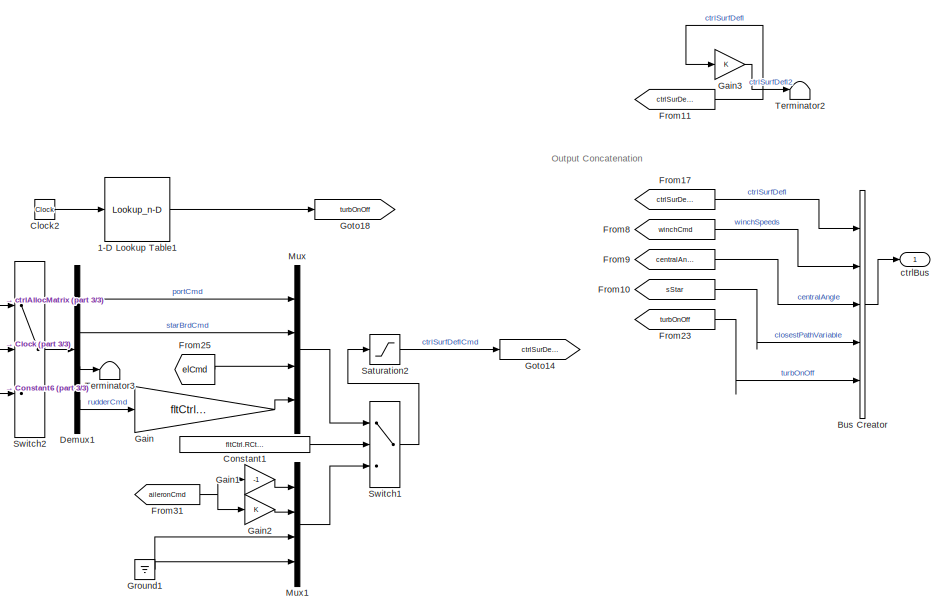
[diagram: takeOffToLandingExp/xcurrent/pathFollowingControllerExp - part 1/3, right side, full height]
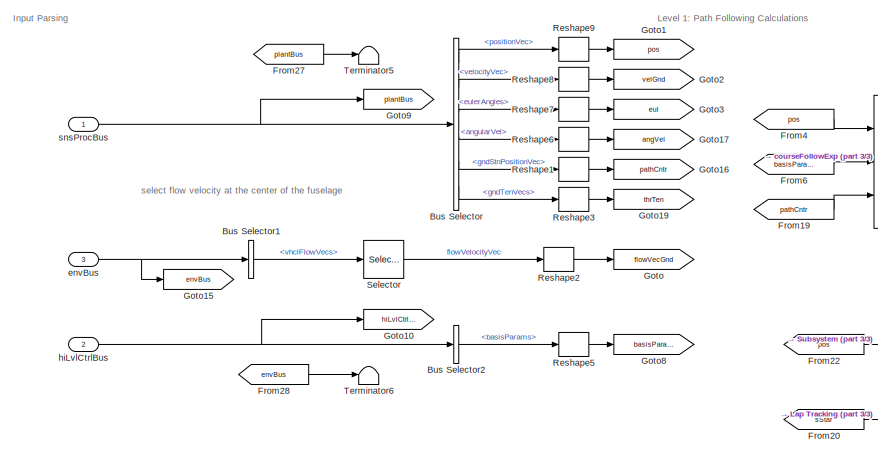
[diagram: takeOffToLandingExp/xcurrent/pathFollowingControllerExp - part 2/3, middle left region]
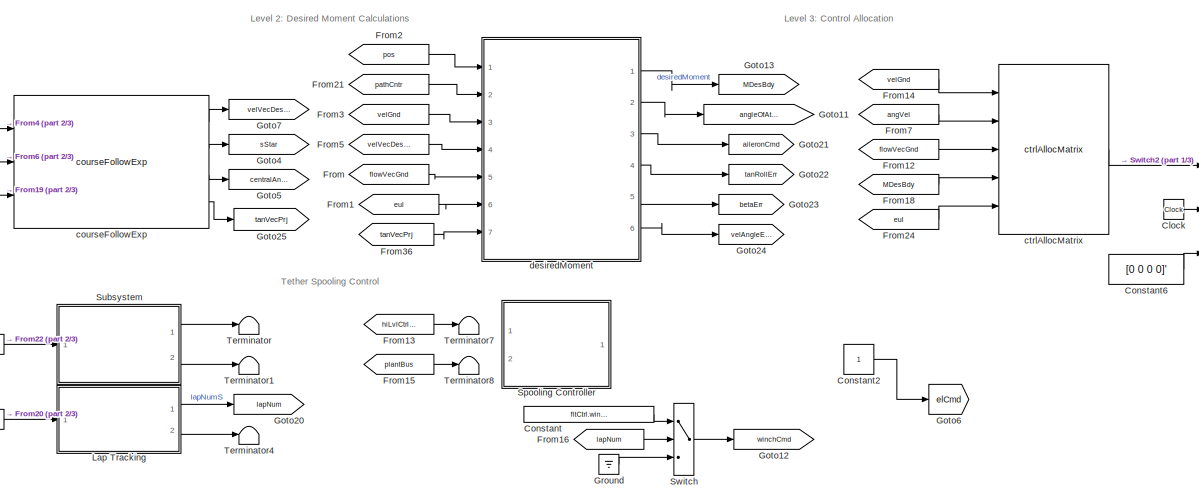
[diagram: takeOffToLandingExp/xcurrent/pathFollowingControllerExp - part 3/3, center side, full height]
BLOCK [SubSystem] takeOffToLandingExp/xcurrent/pathFollowingControllerExp
  AncestorBlock = pathFollowingControllerExp_cl/pathFollowingControllerExp
  InitFcn = initializeBussesFromBlock(gcb)
  LoadFcn = initializeBussesFromBlock(gcb)
  MinAlgLoopOccurrences = on
  Ports = [3, 1]
  RequestExecContextInheritance = off
  StartFcn = initializeBussesFromBlock(gcb)
  VariantControl = strcmpi(FLIGHTCONTROLLER,'pathFollowingControllerMantaBandLin')
BLOCK [Lookup_n-D] takeOffToLandingExp/xcurrent/pathFollowingControllerExp/1-D Lookup Table1
  BreakpointsForDimension1 = [0 1000 2000]
  InputPortMap = u0
  InternalRulePriority = Speed
  InterpMethod = Flat
  NumberOfTableDimensions = 1
  Ports = [1, 1]
  RndMeth = Simplest
  Table = [0 0 0]
BLOCK [BusCreator] takeOffToLandingExp/xcurrent/pathFollowingControllerExp/Bus Creator
  DisplayOption = bar
  InheritFromInputs = off
  Inputs = 5
  OutDataTypeStr = Bus: fltCtrlBus
  Ports = [5, 1]
BLOCK [BusSelector] takeOffToLandingExp/xcurrent/pathFollowingControllerExp/Bus Selector
  OutputSignals = positionVec,velocityVec,eulerAngles,angularVel,gndStnPositionVec,gndTenVecs
  Ports = [1, 6]
BLOCK [BusSelector] takeOffToLandingExp/xcurrent/pathFollowingControllerExp/Bus Selector1
  OutputSignals = vhclFlowVecs
  Ports = [1, 1]
BLOCK [BusSelector] takeOffToLandingExp/xcurrent/pathFollowingControllerExp/Bus Selector2
  OutputSignals = basisParams
  Ports = [1, 1]
BLOCK [Clock] takeOffToLandingExp/xcurrent/pathFollowingControllerExp/Clock
BLOCK [Clock] takeOffToLandingExp/xcurrent/pathFollowingControllerExp/Clock2
BLOCK [Constant] takeOffToLandingExp/xcurrent/pathFollowingControllerExp/Constant
  Value = fltCtrl.winchSpeedIn.Value
BLOCK [Constant] takeOffToLandingExp/xcurrent/pathFollowingControllerExp/Constant1
  Value = fltCtrl.RCtrl.Value
BLOCK [Constant] takeOffToLandingExp/xcurrent/pathFollowingControllerExp/Constant2
BLOCK [Constant] takeOffToLandingExp/xcurrent/pathFollowingControllerExp/Constant6
  Value = [0 0 0 0]'
BLOCK [Demux] takeOffToLandingExp/xcurrent/pathFollowingControllerExp/Demux1
  Ports = [1, 4]
BLOCK [From] takeOffToLandingExp/xcurrent/pathFollowingControllerExp/From
  GotoTag = flowVecGnd
BLOCK [From] takeOffToLandingExp/xcurrent/pathFollowingControllerExp/From1
  GotoTag = eul
BLOCK [From] takeOffToLandingExp/xcurrent/pathFollowingControllerExp/From10
  GotoTag = sStar
BLOCK [From] takeOffToLandingExp/xcurrent/pathFollowingControllerExp/From11
  GotoTag = ctrlSurDefl
BLOCK [From] takeOffToLandingExp/xcurrent/pathFollowingControllerExp/From12
  GotoTag = flowVecGnd
BLOCK [From] takeOffToLandingExp/xcurrent/pathFollowingControllerExp/From13
  GotoTag = hiLvlCtrlBus
BLOCK [From] takeOffToLandingExp/xcurrent/pathFollowingControllerExp/From14
  GotoTag = velGnd
BLOCK [From] takeOffToLandingExp/xcurrent/pathFollowingControllerExp/From15
  GotoTag = plantBus
BLOCK [From] takeOffToLandingExp/xcurrent/pathFollowingControllerExp/From16
  GotoTag = lapNum
BLOCK [From] takeOffToLandingExp/xcurrent/pathFollowingControllerExp/From17
  GotoTag = ctrlSurDefl
BLOCK [From] takeOffToLandingExp/xcurrent/pathFollowingControllerExp/From18
  GotoTag = MDesBdy
BLOCK [From] takeOffToLandingExp/xcurrent/pathFollowingControllerExp/From19
  GotoTag = pathCntr
BLOCK [From] takeOffToLandingExp/xcurrent/pathFollowingControllerExp/From2
  GotoTag = pos
BLOCK [From] takeOffToLandingExp/xcurrent/pathFollowingControllerExp/From20
  GotoTag = sStar
BLOCK [From] takeOffToLandingExp/xcurrent/pathFollowingControllerExp/From21
  GotoTag = pathCntr
BLOCK [From] takeOffToLandingExp/xcurrent/pathFollowingControllerExp/From22
  GotoTag = pos
BLOCK [From] takeOffToLandingExp/xcurrent/pathFollowingControllerExp/From23
  GotoTag = turbOnOff
BLOCK [From] takeOffToLandingExp/xcurrent/pathFollowingControllerExp/From24
  GotoTag = eul
BLOCK [From] takeOffToLandingExp/xcurrent/pathFollowingControllerExp/From25
  GotoTag = elCmd
BLOCK [From] takeOffToLandingExp/xcurrent/pathFollowingControllerExp/From27
  GotoTag = plantBus
BLOCK [From] takeOffToLandingExp/xcurrent/pathFollowingControllerExp/From28
  GotoTag = envBus
BLOCK [From] takeOffToLandingExp/xcurrent/pathFollowingControllerExp/From3
  GotoTag = velGnd
BLOCK [From] takeOffToLandingExp/xcurrent/pathFollowingControllerExp/From31
  GotoTag = aileronCmd
BLOCK [From] takeOffToLandingExp/xcurrent/pathFollowingControllerExp/From36
  GotoTag = tanVecPrj
BLOCK [From] takeOffToLandingExp/xcurrent/pathFollowingControllerExp/From4
  GotoTag = pos
BLOCK [From] takeOffToLandingExp/xcurrent/pathFollowingControllerExp/From5
  GotoTag = velVecDesGnd
BLOCK [From] takeOffToLandingExp/xcurrent/pathFollowingControllerExp/From6
  GotoTag = basisParams
BLOCK [From] takeOffToLandingExp/xcurrent/pathFollowingControllerExp/From7
  GotoTag = angVel
BLOCK [From] takeOffToLandingExp/xcurrent/pathFollowingControllerExp/From8
  GotoTag = winchCmd
BLOCK [From] takeOffToLandingExp/xcurrent/pathFollowingControllerExp/From9
  GotoTag = centralAngle
BLOCK [Gain] takeOffToLandingExp/xcurrent/pathFollowingControllerExp/Gain
  Gain = fltCtrl.rudderGain.Value
BLOCK [Gain] takeOffToLandingExp/xcurrent/pathFollowingControllerExp/Gain1
  Gain = -1
BLOCK [Gain] takeOffToLandingExp/xcurrent/pathFollowingControllerExp/Gain2
BLOCK [Gain] takeOffToLandingExp/xcurrent/pathFollowingControllerExp/Gain3
BLOCK [Goto] takeOffToLandingExp/xcurrent/pathFollowingControllerExp/Goto
  GotoTag = flowVecGnd
BLOCK [Goto] takeOffToLandingExp/xcurrent/pathFollowingControllerExp/Goto1
  GotoTag = pos
BLOCK [Goto] takeOffToLandingExp/xcurrent/pathFollowingControllerExp/Goto10
  GotoTag = hiLvlCtrlBus
BLOCK [Goto] takeOffToLandingExp/xcurrent/pathFollowingControllerExp/Goto11
  GotoTag = angleOfAttack
BLOCK [Goto] takeOffToLandingExp/xcurrent/pathFollowingControllerExp/Goto12
  GotoTag = winchCmd
BLOCK [Goto] takeOffToLandingExp/xcurrent/pathFollowingControllerExp/Goto13
  GotoTag = MDesBdy
BLOCK [Goto] takeOffToLandingExp/xcurrent/pathFollowingControllerExp/Goto14
  GotoTag = ctrlSurDefl
BLOCK [Goto] takeOffToLandingExp/xcurrent/pathFollowingControllerExp/Goto15
  GotoTag = envBus
BLOCK [Goto] takeOffToLandingExp/xcurrent/pathFollowingControllerExp/Goto16
  GotoTag = pathCntr
BLOCK [Goto] takeOffToLandingExp/xcurrent/pathFollowingControllerExp/Goto17
  GotoTag = angVel
BLOCK [Goto] takeOffToLandingExp/xcurrent/pathFollowingControllerExp/Goto18
  GotoTag = turbOnOff
BLOCK [Goto] takeOffToLandingExp/xcurrent/pathFollowingControllerExp/Goto19
  GotoTag = thrTen
BLOCK [Goto] takeOffToLandingExp/xcurrent/pathFollowingControllerExp/Goto2
  GotoTag = velGnd
BLOCK [Goto] takeOffToLandingExp/xcurrent/pathFollowingControllerExp/Goto20
  GotoTag = lapNum
BLOCK [Goto] takeOffToLandingExp/xcurrent/pathFollowingControllerExp/Goto21
  GotoTag = aileronCmd
BLOCK [Goto] takeOffToLandingExp/xcurrent/pathFollowingControllerExp/Goto22
  GotoTag = tanRollErr
BLOCK [Goto] takeOffToLandingExp/xcurrent/pathFollowingControllerExp/Goto23
  GotoTag = betaErr
BLOCK [Goto] takeOffToLandingExp/xcurrent/pathFollowingControllerExp/Goto24
  GotoTag = velAngleErr
BLOCK [Goto] takeOffToLandingExp/xcurrent/pathFollowingControllerExp/Goto25
  GotoTag = tanVecPrj
BLOCK [Goto] takeOffToLandingExp/xcurrent/pathFollowingControllerExp/Goto3
  GotoTag = eul
BLOCK [Goto] takeOffToLandingExp/xcurrent/pathFollowingControllerExp/Goto4
  GotoTag = sStar
BLOCK [Goto] takeOffToLandingExp/xcurrent/pathFollowingControllerExp/Goto5
  GotoTag = centralAngle
BLOCK [Goto] takeOffToLandingExp/xcurrent/pathFollowingControllerExp/Goto6
  GotoTag = elCmd
BLOCK [Goto] takeOffToLandingExp/xcurrent/pathFollowingControllerExp/Goto7
  GotoTag = velVecDesGnd
BLOCK [Goto] takeOffToLandingExp/xcurrent/pathFollowingControllerExp/Goto8
  GotoTag = basisParams
BLOCK [Goto] takeOffToLandingExp/xcurrent/pathFollowingControllerExp/Goto9
  GotoTag = plantBus
BLOCK [Ground] takeOffToLandingExp/xcurrent/pathFollowingControllerExp/Ground
BLOCK [Ground] takeOffToLandingExp/xcurrent/pathFollowingControllerExp/Ground1
BLOCK [SubSystem] takeOffToLandingExp/xcurrent/pathFollowingControllerExp/Lap Tracking
  Ports = [1, 2]
  RequestExecContextInheritance = off
BLOCK [Sum] takeOffToLandingExp/xcurrent/pathFollowingControllerExp/Lap Tracking/Add2
  IconShape = rectangular
  Ports = [2, 1]
BLOCK [Reference] takeOffToLandingExp/xcurrent/pathFollowingControllerExp/Lap Tracking/Compare To Constant1  REF=simulink/Logic and Bit
Operations/Compare
To Constant
  Ports = [1, 1]
  SourceBlock = simulink/Logic and Bit\nOperations/Compare\nTo Constant
  SourceProductBaseCode = SL
  SourceType = Compare To Constant
BLOCK [Reference] takeOffToLandingExp/xcurrent/pathFollowingControllerExp/Lap Tracking/Compare To Constant3  REF=simulink/Logic and Bit
Operations/Compare
To Constant
  Ports = [1, 1]
  SourceBlock = simulink/Logic and Bit\nOperations/Compare\nTo Constant
  SourceProductBaseCode = SL
  SourceType = Compare To Constant
BLOCK [Reference] takeOffToLandingExp/xcurrent/pathFollowingControllerExp/Lap Tracking/Compare To Constant4  REF=simulink/Logic and Bit
Operations/Compare
To Constant
  Ports = [1, 1]
  SourceBlock = simulink/Logic and Bit\nOperations/Compare\nTo Constant
  SourceProductBaseCode = SL
  SourceType = Compare To Constant
BLOCK [DataTypeConversion] takeOffToLandingExp/xcurrent/pathFollowingControllerExp/Lap Tracking/Data Type Conversion2
  OutDataTypeStr = double
  RndMeth = Floor
  SaturateOnIntegerOverflow = off
BLOCK [Logic] takeOffToLandingExp/xcurrent/pathFollowingControllerExp/Lap Tracking/Logical Operator1
  AllPortsSameDT = off
  Inputs = 4
  OutDataTypeStr = boolean
  Ports = [4, 1]
BLOCK [Memory] takeOffToLandingExp/xcurrent/pathFollowingControllerExp/Lap Tracking/Memory
  InitialCondition = false
BLOCK [Memory] takeOffToLandingExp/xcurrent/pathFollowingControllerExp/Lap Tracking/Memory3
BLOCK [Memory] takeOffToLandingExp/xcurrent/pathFollowingControllerExp/Lap Tracking/Memory4
BLOCK [SubSystem] takeOffToLandingExp/xcurrent/pathFollowingControllerExp/Lap Tracking/Subsystem
  Ports = [2, 1]
  RequestExecContextInheritance = off
BLOCK [Logic] takeOffToLandingExp/xcurrent/pathFollowingControllerExp/Lap Tracking/Subsystem/AND
  AllPortsSameDT = off
  OutDataTypeStr = boolean
  Ports = [2, 1]
BLOCK [Sum] takeOffToLandingExp/xcurrent/pathFollowingControllerExp/Lap Tracking/Subsystem/Add
  IconShape = rectangular
  Ports = [2, 1]
BLOCK [DataTypeConversion] takeOffToLandingExp/xcurrent/pathFollowingControllerExp/Lap Tracking/Subsystem/Cast To Double
  OutDataTypeStr = double
  RndMeth = Floor
  SaturateOnIntegerOverflow = off
BLOCK [Reference] takeOffToLandingExp/xcurrent/pathFollowingControllerExp/Lap Tracking/Subsystem/Compare To Constant  REF=simulink/Logic and Bit
Operations/Compare
To Constant
  Ports = [1, 1]
  SourceBlock = simulink/Logic and Bit\nOperations/Compare\nTo Constant
  SourceProductBaseCode = SL
  SourceType = Compare To Constant
BLOCK [Reference] takeOffToLandingExp/xcurrent/pathFollowingControllerExp/Lap Tracking/Subsystem/Compare To Constant1  REF=simulink/Logic and Bit
Operations/Compare
To Constant
  Ports = [1, 1]
  SourceBlock = simulink/Logic and Bit\nOperations/Compare\nTo Constant
  SourceProductBaseCode = SL
  SourceType = Compare To Constant
BLOCK [Product] takeOffToLandingExp/xcurrent/pathFollowingControllerExp/Lap Tracking/Subsystem/Divide
  Inputs = **
  Ports = [2, 1]
BLOCK [Product] takeOffToLandingExp/xcurrent/pathFollowingControllerExp/Lap Tracking/Subsystem/Divide1
  Inputs = **
  Ports = [2, 1]
BLOCK [From] takeOffToLandingExp/xcurrent/pathFollowingControllerExp/Lap Tracking/Subsystem/From
  GotoTag = zeroIfReset
BLOCK [From] takeOffToLandingExp/xcurrent/pathFollowingControllerExp/Lap Tracking/Subsystem/From1
  GotoTag = zeroIfReset
BLOCK [From] takeOffToLandingExp/xcurrent/pathFollowingControllerExp/Lap Tracking/Subsystem/From2
  GotoTag = zeroIfReset
BLOCK [From] takeOffToLandingExp/xcurrent/pathFollowingControllerExp/Lap Tracking/Subsystem/From3
  GotoTag = zeroIfReset
BLOCK [Gain] takeOffToLandingExp/xcurrent/pathFollowingControllerExp/Lap Tracking/Subsystem/Gain
  Gain = -1
BLOCK [Goto] takeOffToLandingExp/xcurrent/pathFollowingControllerExp/Lap Tracking/Subsystem/Goto
  GotoTag = zeroIfReset
BLOCK [MinMax] takeOffToLandingExp/xcurrent/pathFollowingControllerExp/Lap Tracking/Subsystem/Max
  Function = max
  Inputs = 2
  Ports = [2, 1]
BLOCK [MinMax] takeOffToLandingExp/xcurrent/pathFollowingControllerExp/Lap Tracking/Subsystem/Max1
  Inputs = 2
  Ports = [2, 1]
BLOCK [Constant] takeOffToLandingExp/xcurrent/pathFollowingControllerExp/Lap Tracking/Subsystem/One
  OutDataTypeStr = Inherit: Inherit via back propagation
BLOCK [Math] takeOffToLandingExp/xcurrent/pathFollowingControllerExp/Lap Tracking/Subsystem/Power
  Operator = pow
  Ports = [2, 1]
BLOCK [Math] takeOffToLandingExp/xcurrent/pathFollowingControllerExp/Lap Tracking/Subsystem/Power1
  Operator = pow
  Ports = [2, 1]
BLOCK [Inport] takeOffToLandingExp/xcurrent/pathFollowingControllerExp/Lap Tracking/Subsystem/S
BLOCK [Memory] takeOffToLandingExp/xcurrent/pathFollowingControllerExp/Lap Tracking/Subsystem/memoryIC1
  InitialCondition = 1
BLOCK [Memory] takeOffToLandingExp/xcurrent/pathFollowingControllerExp/Lap Tracking/Subsystem/memoryIC=0
BLOCK [Memory] takeOffToLandingExp/xcurrent/pathFollowingControllerExp/Lap Tracking/Subsystem/memoryIC=1
  InitialCondition = 1
BLOCK [Outport] takeOffToLandingExp/xcurrent/pathFollowingControllerExp/Lap Tracking/Subsystem/realLap
BLOCK [Inport] takeOffToLandingExp/xcurrent/pathFollowingControllerExp/Lap Tracking/Subsystem/rst
  Port = 2
BLOCK [Outport] takeOffToLandingExp/xcurrent/pathFollowingControllerExp/Lap Tracking/lapNum
  VectorParamsAs1DForOutWhenUnconnected = off
BLOCK [Inport] takeOffToLandingExp/xcurrent/pathFollowingControllerExp/Lap Tracking/pathParameter
BLOCK [Outport] takeOffToLandingExp/xcurrent/pathFollowingControllerExp/Lap Tracking/rst
  Port = 2
  VectorParamsAs1DForOutWhenUnconnected = off
BLOCK [Reference] takeOffToLandingExp/xcurrent/pathFollowingControllerExp/Lap Tracking/stopwatch  REF=stopwatch_ul/stopwatch  (lib defined in slx_5231e8830116, slx_6b86a6863970)
  Ports = [1, 1]
  SourceBlock = stopwatch_ul/stopwatch
  SourceType = SubSystem
BLOCK [Mux] takeOffToLandingExp/xcurrent/pathFollowingControllerExp/Mux
  DisplayOption = bar
  Ports = [4, 1]
BLOCK [Mux] takeOffToLandingExp/xcurrent/pathFollowingControllerExp/Mux1
  DisplayOption = bar
  Ports = [4, 1]
BLOCK [Reshape] takeOffToLandingExp/xcurrent/pathFollowingControllerExp/Reshape1
  OutputDimensionality = Column vector (2-D)
  Ports = [1, 1]
BLOCK [Reshape] takeOffToLandingExp/xcurrent/pathFollowingControllerExp/Reshape2
  OutputDimensionality = Column vector (2-D)
  Ports = [1, 1]
BLOCK [Reshape] takeOffToLandingExp/xcurrent/pathFollowingControllerExp/Reshape3
  OutputDimensionality = Column vector (2-D)
  Ports = [1, 1]
BLOCK [Reshape] takeOffToLandingExp/xcurrent/pathFollowingControllerExp/Reshape5
  OutputDimensionality = Column vector (2-D)
  Ports = [1, 1]
BLOCK [Reshape] takeOffToLandingExp/xcurrent/pathFollowingControllerExp/Reshape6
  OutputDimensionality = Column vector (2-D)
  Ports = [1, 1]
BLOCK [Reshape] takeOffToLandingExp/xcurrent/pathFollowingControllerExp/Reshape7
  OutputDimensionality = Column vector (2-D)
  Ports = [1, 1]
BLOCK [Reshape] takeOffToLandingExp/xcurrent/pathFollowingControllerExp/Reshape8
  OutputDimensionality = Column vector (2-D)
  Ports = [1, 1]
BLOCK [Reshape] takeOffToLandingExp/xcurrent/pathFollowingControllerExp/Reshape9
  OutputDimensionality = Column vector (2-D)
  Ports = [1, 1]
BLOCK [Saturate] takeOffToLandingExp/xcurrent/pathFollowingControllerExp/Saturation2
  LowerLimit = pathCtrl.controlSigMax.lowerLimit.Value
  UpperLimit = pathCtrl.controlSigMax.upperLimit.Value
BLOCK [Selector] takeOffToLandingExp/xcurrent/pathFollowingControllerExp/Selector
  IndexOptions = Select all,Index vector (dialog)
  Indices = [1 3],5
  InputPortWidth = 3
  NumberOfDimensions = 2
  OutputSizes = 1,1
  Ports = [1, 1]
BLOCK [SubSystem] takeOffToLandingExp/xcurrent/pathFollowingControllerExp/Spooling Controller 
  Commented = on
  Ports = [2, 1]
  RequestExecContextInheritance = off
BLOCK [Sum] takeOffToLandingExp/xcurrent/pathFollowingControllerExp/Spooling Controller /Add1
  IconShape = rectangular
  Inputs = +-
  Ports = [2, 1]
BLOCK [BusSelector] takeOffToLandingExp/xcurrent/pathFollowingControllerExp/Spooling Controller /Bus Selector1
  OutputSignals = avgTetherLength
  Ports = [1, 1]
BLOCK [BusSelector] takeOffToLandingExp/xcurrent/pathFollowingControllerExp/Spooling Controller /Bus Selector3
  OutputSignals = basisParams
  Ports = [1, 1]
BLOCK [Constant] takeOffToLandingExp/xcurrent/pathFollowingControllerExp/Spooling Controller /Constant2
  Value = fltCtrl.optAltitude.Value
BLOCK [Constant] takeOffToLandingExp/xcurrent/pathFollowingControllerExp/Spooling Controller /Constant3
  Value = hiLvlCtrl.ThrCtrl.Value
BLOCK [Fcn] takeOffToLandingExp/xcurrent/pathFollowingControllerExp/Spooling Controller /Fcn
  Expr = u(2)/sin(u(1))
BLOCK [Ground] takeOffToLandingExp/xcurrent/pathFollowingControllerExp/Spooling Controller /Ground
BLOCK [Inport] takeOffToLandingExp/xcurrent/pathFollowingControllerExp/Spooling Controller /HiLvlCtrl
BLOCK [MultiPortSwitch] takeOffToLandingExp/xcurrent/pathFollowingControllerExp/Spooling Controller /Multiport Switch
  DataPortIndices = {0,1}
  DataPortOrder = Specify indices
  InputSameDT = off
  Inputs = 2
  Ports = [3, 1]
  SaturateOnIntegerOverflow = off
BLOCK [Mux] takeOffToLandingExp/xcurrent/pathFollowingControllerExp/Spooling Controller /Mux1
  DisplayOption = bar
  Inputs = 2
  Ports = [2, 1]
BLOCK [Inport] takeOffToLandingExp/xcurrent/pathFollowingControllerExp/Spooling Controller /PlantBus
  Port = 2
BLOCK [Saturate] takeOffToLandingExp/xcurrent/pathFollowingControllerExp/Spooling Controller /Saturation
  LowerLimit = -.25
  UpperLimit = .25
BLOCK [Selector] takeOffToLandingExp/xcurrent/pathFollowingControllerExp/Spooling Controller /Selector2
  IndexOptions = Index vector (dialog)
  Indices = 3
  InputPortWidth = 5
  OutputSizes = 1
  Ports = [1, 1]
BLOCK [Outport] takeOffToLandingExp/xcurrent/pathFollowingControllerExp/Spooling Controller /winchCMD
BLOCK [SubSystem] takeOffToLandingExp/xcurrent/pathFollowingControllerExp/Subsystem
  Ports = [1, 2]
  RequestExecContextInheritance = off
BLOCK [Trigonometry] takeOffToLandingExp/xcurrent/pathFollowingControllerExp/Subsystem/Atan1
  Operator = atan2
  Ports = [2, 1]
BLOCK [Trigonometry] takeOffToLandingExp/xcurrent/pathFollowingControllerExp/Subsystem/Atan2
  Operator = atan2
  Ports = [2, 1]
BLOCK [Gain] takeOffToLandingExp/xcurrent/pathFollowingControllerExp/Subsystem/Gain
  Gain = 180/pi
BLOCK [Gain] takeOffToLandingExp/xcurrent/pathFollowingControllerExp/Subsystem/Gain1
  Gain = 180/pi
BLOCK [Selector] takeOffToLandingExp/xcurrent/pathFollowingControllerExp/Subsystem/Selector1
  IndexOptions = Index vector (dialog)
  Indices = 1
  InputPortWidth = 3
  OutputSizes = 1
  Ports = [1, 1]
BLOCK [Selector] takeOffToLandingExp/xcurrent/pathFollowingControllerExp/Subsystem/Selector2
  IndexOptions = Index vector (dialog)
  Indices = [1 2]
  InputPortWidth = 3
  OutputSizes = 1
  Ports = [1, 1]
BLOCK [Selector] takeOffToLandingExp/xcurrent/pathFollowingControllerExp/Subsystem/Selector3
  IndexOptions = Index vector (dialog)
  Indices = 3
  InputPortWidth = 3
  OutputSizes = 1
  Ports = [1, 1]
BLOCK [Selector] takeOffToLandingExp/xcurrent/pathFollowingControllerExp/Subsystem/Selector4
  IndexOptions = Index vector (dialog)
  Indices = 2
  InputPortWidth = 3
  OutputSizes = 1
  Ports = [1, 1]
BLOCK [Sqrt] takeOffToLandingExp/xcurrent/pathFollowingControllerExp/Subsystem/Sqrt1
BLOCK [Sqrt] takeOffToLandingExp/xcurrent/pathFollowingControllerExp/Subsystem/Sqrt2
BLOCK [Math] takeOffToLandingExp/xcurrent/pathFollowingControllerExp/Subsystem/Square1
  Operator = square
  Ports = [1, 1]
  SignedPower = on
BLOCK [Math] takeOffToLandingExp/xcurrent/pathFollowingControllerExp/Subsystem/Square2
  Operator = square
  Ports = [1, 1]
  SignedPower = on
BLOCK [Sum] takeOffToLandingExp/xcurrent/pathFollowingControllerExp/Subsystem/Sum of Elements
  IconShape = rectangular
  Inputs = +
  Ports = [1, 1]
BLOCK [Sum] takeOffToLandingExp/xcurrent/pathFollowingControllerExp/Subsystem/Sum of Elements1
  IconShape = rectangular
  Inputs = +
  Ports = [1, 1]
BLOCK [Outport] takeOffToLandingExp/xcurrent/pathFollowingControllerExp/Subsystem/azimuth Angle
  Port = 2
BLOCK [Outport] takeOffToLandingExp/xcurrent/pathFollowingControllerExp/Subsystem/elevationAngle
BLOCK [Inport] takeOffToLandingExp/xcurrent/pathFollowingControllerExp/Subsystem/posVecGnd
BLOCK [Switch] takeOffToLandingExp/xcurrent/pathFollowingControllerExp/Switch
  InputSameDT = off
  SaturateOnIntegerOverflow = off
  Threshold = fltCtrl.firstSpoolLap.Value
BLOCK [Switch] takeOffToLandingExp/xcurrent/pathFollowingControllerExp/Switch1
  Criteria = u2 > Threshold
  InputSameDT = off
  SaturateOnIntegerOverflow = off
  Threshold = .5
BLOCK [Switch] takeOffToLandingExp/xcurrent/pathFollowingControllerExp/Switch2
  Criteria = u2 > Threshold
  InputSameDT = off
  SaturateOnIntegerOverflow = off
  Threshold = pathCtrl.startControl.Value
BLOCK [Terminator] takeOffToLandingExp/xcurrent/pathFollowingControllerExp/Terminator
BLOCK [Terminator] takeOffToLandingExp/xcurrent/pathFollowingControllerExp/Terminator1
BLOCK [Terminator] takeOffToLandingExp/xcurrent/pathFollowingControllerExp/Terminator2
BLOCK [Terminator] takeOffToLandingExp/xcurrent/pathFollowingControllerExp/Terminator3
BLOCK [Terminator] takeOffToLandingExp/xcurrent/pathFollowingControllerExp/Terminator4
BLOCK [Terminator] takeOffToLandingExp/xcurrent/pathFollowingControllerExp/Terminator5
BLOCK [Terminator] takeOffToLandingExp/xcurrent/pathFollowingControllerExp/Terminator6
BLOCK [Terminator] takeOffToLandingExp/xcurrent/pathFollowingControllerExp/Terminator7
BLOCK [Terminator] takeOffToLandingExp/xcurrent/pathFollowingControllerExp/Terminator8
BLOCK [Reference] takeOffToLandingExp/xcurrent/pathFollowingControllerExp/courseFollowExp  REF=courseFollowExp_cl/courseFollowExp
  Ports = [3, 4]
  SourceBlock = courseFollowExp_cl/courseFollowExp
  SourceType = SubSystem
BLOCK [Reference] takeOffToLandingExp/xcurrent/pathFollowingControllerExp/ctrlAllocMatrix  REF=ctrlAllocMatrix_cl/ctrlAllocMatrix
  Ports = [5, 1]
  SourceBlock = ctrlAllocMatrix_cl/ctrlAllocMatrix
BLOCK [Outport] takeOffToLandingExp/xcurrent/pathFollowingControllerExp/ctrlBus
  OutDataTypeStr = Bus: fltCtrlBus
  VectorParamsAs1DForOutWhenUnconnected = off
BLOCK [SubSystem] takeOffToLandingExp/xcurrent/pathFollowingControllerExp/desiredMoment
  Ports = [7, 6]
  RequestExecContextInheritance = off
BLOCK [Sum] takeOffToLandingExp/xcurrent/pathFollowingControllerExp/desiredMoment/Add
  IconShape = rectangular
  Inputs = +-
  Ports = [2, 1]
BLOCK [Sum] takeOffToLandingExp/xcurrent/pathFollowingControllerExp/desiredMoment/Add1
  IconShape = rectangular
  Inputs = +-
  Ports = [2, 1]
BLOCK [Sum] takeOffToLandingExp/xcurrent/pathFollowingControllerExp/desiredMoment/Add2
  IconShape = rectangular
  Inputs = +-
  Ports = [2, 1]
BLOCK [Sum] takeOffToLandingExp/xcurrent/pathFollowingControllerExp/desiredMoment/Add3
  Commented = on
  IconShape = rectangular
  Inputs = +-
  Ports = [2, 1]
BLOCK [Constant] takeOffToLandingExp/xcurrent/pathFollowingControllerExp/desiredMoment/Constant4
BLOCK [Demux] takeOffToLandingExp/xcurrent/pathFollowingControllerExp/desiredMoment/Demux
  Outputs = 3
  Ports = [1, 3]
BLOCK [Reference] takeOffToLandingExp/xcurrent/pathFollowingControllerExp/desiredMoment/EulerAngle2RotMat1  REF=eulAng2RotMat_ul/EulerAngle2RotMat
  Ports = [3, 2]
  SourceBlock = eulAng2RotMat_ul/EulerAngle2RotMat
  SourceType = SubSystem
BLOCK [From] takeOffToLandingExp/xcurrent/pathFollowingControllerExp/desiredMoment/From
  GotoTag = body2gr
BLOCK [From] takeOffToLandingExp/xcurrent/pathFollowingControllerExp/desiredMoment/From1
  GotoTag = tan2Gr
BLOCK [From] takeOffToLandingExp/xcurrent/pathFollowingControllerExp/desiredMoment/From10
  GotoTag = gndStnPosVecGnd
BLOCK [From] takeOffToLandingExp/xcurrent/pathFollowingControllerExp/desiredMoment/From11
  GotoTag = gndStnPosVecGnd
BLOCK [From] takeOffToLandingExp/xcurrent/pathFollowingControllerExp/desiredMoment/From12
  GotoTag = velVecGnd
BLOCK [From] takeOffToLandingExp/xcurrent/pathFollowingControllerExp/desiredMoment/From13
  GotoTag = tanRoll
BLOCK [From] takeOffToLandingExp/xcurrent/pathFollowingControllerExp/desiredMoment/From14
  GotoTag = tanRollDes
BLOCK [From] takeOffToLandingExp/xcurrent/pathFollowingControllerExp/desiredMoment/From15
  GotoTag = posVecGnd
BLOCK [From] takeOffToLandingExp/xcurrent/pathFollowingControllerExp/desiredMoment/From16
  GotoTag = gndStnPosVecGnd
BLOCK [From] takeOffToLandingExp/xcurrent/pathFollowingControllerExp/desiredMoment/From17
  GotoTag = flowVecGnd
BLOCK [From] takeOffToLandingExp/xcurrent/pathFollowingControllerExp/desiredMoment/From18
  GotoTag = velVecGnd
BLOCK [From] takeOffToLandingExp/xcurrent/pathFollowingControllerExp/desiredMoment/From19
  GotoTag = pitchMomDes
BLOCK [From] takeOffToLandingExp/xcurrent/pathFollowingControllerExp/desiredMoment/From2
  GotoTag = velAngDes
BLOCK [From] takeOffToLandingExp/xcurrent/pathFollowingControllerExp/desiredMoment/From20
  GotoTag = pathAngle
BLOCK [From] takeOffToLandingExp/xcurrent/pathFollowingControllerExp/desiredMoment/From21
  Commented = on
  GotoTag = tanRoll
BLOCK [From] takeOffToLandingExp/xcurrent/pathFollowingControllerExp/desiredMoment/From22
  Commented = on
  GotoTag = tanRollDes
BLOCK [From] takeOffToLandingExp/xcurrent/pathFollowingControllerExp/desiredMoment/From23
  GotoTag = gndStnPosVecGnd
BLOCK [From] takeOffToLandingExp/xcurrent/pathFollowingControllerExp/desiredMoment/From24
  GotoTag = tanVecGnd
BLOCK [From] takeOffToLandingExp/xcurrent/pathFollowingControllerExp/desiredMoment/From25
  GotoTag = posVecGnd
BLOCK [From] takeOffToLandingExp/xcurrent/pathFollowingControllerExp/desiredMoment/From26
  GotoTag = velAngle
BLOCK [From] takeOffToLandingExp/xcurrent/pathFollowingControllerExp/desiredMoment/From3
  GotoTag = velAngle
BLOCK [From] takeOffToLandingExp/xcurrent/pathFollowingControllerExp/desiredMoment/From4
  GotoTag = rollMomDes
BLOCK [From] takeOffToLandingExp/xcurrent/pathFollowingControllerExp/desiredMoment/From5
  GotoTag = yawMomDes
BLOCK [From] takeOffToLandingExp/xcurrent/pathFollowingControllerExp/desiredMoment/From6
  GotoTag = gr2body
BLOCK [From] takeOffToLandingExp/xcurrent/pathFollowingControllerExp/desiredMoment/From7
  GotoTag = velVecDesGnd
BLOCK [From] takeOffToLandingExp/xcurrent/pathFollowingControllerExp/desiredMoment/From8
  GotoTag = posVecGnd
BLOCK [From] takeOffToLandingExp/xcurrent/pathFollowingControllerExp/desiredMoment/From9
  GotoTag = posVecGnd
BLOCK [Gain] takeOffToLandingExp/xcurrent/pathFollowingControllerExp/desiredMoment/Gain1
  Gain = -1
BLOCK [Gain] takeOffToLandingExp/xcurrent/pathFollowingControllerExp/desiredMoment/Gain3
  Gain = -1
BLOCK [Goto] takeOffToLandingExp/xcurrent/pathFollowingControllerExp/desiredMoment/Goto
  GotoTag = posVecGnd
BLOCK [Goto] takeOffToLandingExp/xcurrent/pathFollowingControllerExp/desiredMoment/Goto1
  GotoTag = flowVecGnd
BLOCK [Goto] takeOffToLandingExp/xcurrent/pathFollowingControllerExp/desiredMoment/Goto10
  GotoTag = tanRoll
BLOCK [Goto] takeOffToLandingExp/xcurrent/pathFollowingControllerExp/desiredMoment/Goto11
  GotoTag = tan2Gr
BLOCK [Goto] takeOffToLandingExp/xcurrent/pathFollowingControllerExp/desiredMoment/Goto12
  GotoTag = rollMomDes
BLOCK [Goto] takeOffToLandingExp/xcurrent/pathFollowingControllerExp/desiredMoment/Goto13
  GotoTag = yawMomDes
BLOCK [Goto] takeOffToLandingExp/xcurrent/pathFollowingControllerExp/desiredMoment/Goto14
  GotoTag = pitchMomDes
BLOCK [Goto] takeOffToLandingExp/xcurrent/pathFollowingControllerExp/desiredMoment/Goto15
  GotoTag = sideSlipAngle
BLOCK [Goto] takeOffToLandingExp/xcurrent/pathFollowingControllerExp/desiredMoment/Goto16
  GotoTag = tanVecGnd
BLOCK [Goto] takeOffToLandingExp/xcurrent/pathFollowingControllerExp/desiredMoment/Goto17
  GotoTag = pathAngle
BLOCK [Goto] takeOffToLandingExp/xcurrent/pathFollowingControllerExp/desiredMoment/Goto2
  GotoTag = velVecGnd
BLOCK [Goto] takeOffToLandingExp/xcurrent/pathFollowingControllerExp/desiredMoment/Goto3
  GotoTag = gndStnPosVecGnd
BLOCK [Goto] takeOffToLandingExp/xcurrent/pathFollowingControllerExp/desiredMoment/Goto4
  GotoTag = velVecDesGnd
BLOCK [Goto] takeOffToLandingExp/xcurrent/pathFollowingControllerExp/desiredMoment/Goto5
  GotoTag = body2gr
BLOCK [Goto] takeOffToLandingExp/xcurrent/pathFollowingControllerExp/desiredMoment/Goto6
  GotoTag = gr2body
BLOCK [Goto] takeOffToLandingExp/xcurrent/pathFollowingControllerExp/desiredMoment/Goto7
  GotoTag = velAngDes
BLOCK [Goto] takeOffToLandingExp/xcurrent/pathFollowingControllerExp/desiredMoment/Goto8
  GotoTag = velAngle
BLOCK [Goto] takeOffToLandingExp/xcurrent/pathFollowingControllerExp/desiredMoment/Goto9
  GotoTag = tanRollDes
BLOCK [Ground] takeOffToLandingExp/xcurrent/pathFollowingControllerExp/desiredMoment/Ground
BLOCK [Product] takeOffToLandingExp/xcurrent/pathFollowingControllerExp/desiredMoment/Matrix Multiply
  Multiplication = Matrix(*)
  Ports = [2, 1]
BLOCK [Sum] takeOffToLandingExp/xcurrent/pathFollowingControllerExp/desiredMoment/Minus1
  IconShape = rectangular
  Inputs = +-
  Ports = [2, 1]
BLOCK [Mux] takeOffToLandingExp/xcurrent/pathFollowingControllerExp/desiredMoment/Mux
  DisplayOption = bar
  Inputs = 3
  Ports = [3, 1]
BLOCK [Gain] takeOffToLandingExp/xcurrent/pathFollowingControllerExp/desiredMoment/Proportional Controller
  Gain = fltCtrl.tanRoll.kp.Value
BLOCK [SubSystem] takeOffToLandingExp/xcurrent/pathFollowingControllerExp/desiredMoment/TangentRollCalculation
  Ports = [2, 1]
  RequestExecContextInheritance = off
BLOCK [Constant] takeOffToLandingExp/xcurrent/pathFollowingControllerExp/desiredMoment/TangentRollCalculation/Constant1
  Value = pi/2
BLOCK [Constant] takeOffToLandingExp/xcurrent/pathFollowingControllerExp/desiredMoment/TangentRollCalculation/Constant2
  Value = pi/2
BLOCK [Constant] takeOffToLandingExp/xcurrent/pathFollowingControllerExp/desiredMoment/TangentRollCalculation/Constant3
  Value = [0 1 0]'
BLOCK [Constant] takeOffToLandingExp/xcurrent/pathFollowingControllerExp/desiredMoment/TangentRollCalculation/Constant4
  Value = [0 0 1]'
BLOCK [Constant] takeOffToLandingExp/xcurrent/pathFollowingControllerExp/desiredMoment/TangentRollCalculation/Constant5
  Value = [1 0 0]'
BLOCK [Constant] takeOffToLandingExp/xcurrent/pathFollowingControllerExp/desiredMoment/TangentRollCalculation/Constant6
  Value = [0 0 1]'
BLOCK [Gain] takeOffToLandingExp/xcurrent/pathFollowingControllerExp/desiredMoment/TangentRollCalculation/Gain
  Gain = -1
BLOCK [Product] takeOffToLandingExp/xcurrent/pathFollowingControllerExp/desiredMoment/TangentRollCalculation/Matrix Multiply
  Multiplication = Matrix(*)
  Ports = [2, 1]
BLOCK [Product] takeOffToLandingExp/xcurrent/pathFollowingControllerExp/desiredMoment/TangentRollCalculation/Matrix Multiply1
  Multiplication = Matrix(*)
  Ports = [2, 1]
BLOCK [Product] takeOffToLandingExp/xcurrent/pathFollowingControllerExp/desiredMoment/TangentRollCalculation/Matrix Multiply2
  Multiplication = Matrix(*)
  Ports = [2, 1]
BLOCK [Product] takeOffToLandingExp/xcurrent/pathFollowingControllerExp/desiredMoment/TangentRollCalculation/Matrix Multiply3
  Multiplication = Matrix(*)
  Ports = [2, 1]
BLOCK [Sum] takeOffToLandingExp/xcurrent/pathFollowingControllerExp/desiredMoment/TangentRollCalculation/Subtract
  IconShape = rectangular
  Inputs = +-
  Ports = [2, 1]
BLOCK [Sum] takeOffToLandingExp/xcurrent/pathFollowingControllerExp/desiredMoment/TangentRollCalculation/Subtract1
  IconShape = rectangular
  Inputs = +-
  Ports = [2, 1]
BLOCK [Terminator] takeOffToLandingExp/xcurrent/pathFollowingControllerExp/desiredMoment/TangentRollCalculation/Terminator
BLOCK [Reference] takeOffToLandingExp/xcurrent/pathFollowingControllerExp/desiredMoment/TangentRollCalculation/angleBtw2DVecs  REF=angleBtw2Vecs_ul/angleBtw2DVecs
  Ports = [2, 1]
  SourceBlock = angleBtw2Vecs_ul/angleBtw2DVecs
  SourceType = SubSystem
BLOCK [SubSystem] takeOffToLandingExp/xcurrent/pathFollowingControllerExp/desiredMoment/TangentRollCalculation/angleBtw2DVecs1
  Ports = [2, 1]
  RequestExecContextInheritance = off
BLOCK [Abs] takeOffToLandingExp/xcurrent/pathFollowingControllerExp/desiredMoment/TangentRollCalculation/angleBtw2DVecs1/Abs
  SaturateOnIntegerOverflow = off
BLOCK [Trigonometry] takeOffToLandingExp/xcurrent/pathFollowingControllerExp/desiredMoment/TangentRollCalculation/angleBtw2DVecs1/Atan2
  Operator = atan2
  Ports = [2, 1]
BLOCK [Reference] takeOffToLandingExp/xcurrent/pathFollowingControllerExp/desiredMoment/TangentRollCalculation/angleBtw2DVecs1/Cross Product  REF=vrlib/Utilities/Cross Product
  Ports = [2, 1]
  SourceBlock = vrlib/Utilities/Cross Product
  SourceProductBaseCode = SL
  SourceType = Cross Product
BLOCK [DotProduct] takeOffToLandingExp/xcurrent/pathFollowingControllerExp/desiredMoment/TangentRollCalculation/angleBtw2DVecs1/Dot Product
  OutDataTypeStr = Inherit: Inherit via internal rule
BLOCK [DotProduct] takeOffToLandingExp/xcurrent/pathFollowingControllerExp/desiredMoment/TangentRollCalculation/angleBtw2DVecs1/Dot Product1
  OutDataTypeStr = Inherit: Inherit via internal rule
BLOCK [Sqrt] takeOffToLandingExp/xcurrent/pathFollowingControllerExp/desiredMoment/TangentRollCalculation/angleBtw2DVecs1/Sqrt
BLOCK [Outport] takeOffToLandingExp/xcurrent/pathFollowingControllerExp/desiredMoment/TangentRollCalculation/angleBtw2DVecs1/angle
  VectorParamsAs1DForOutWhenUnconnected = off
BLOCK [Inport] takeOffToLandingExp/xcurrent/pathFollowingControllerExp/desiredMoment/TangentRollCalculation/angleBtw2DVecs1/vec1
BLOCK [Inport] takeOffToLandingExp/xcurrent/pathFollowingControllerExp/desiredMoment/TangentRollCalculation/angleBtw2DVecs1/vec2
  Port = 2
BLOCK [Inport] takeOffToLandingExp/xcurrent/pathFollowingControllerExp/desiredMoment/TangentRollCalculation/bdy2Inert
  Port = 2
BLOCK [Inport] takeOffToLandingExp/xcurrent/pathFollowingControllerExp/desiredMoment/TangentRollCalculation/tan2Gr
BLOCK [Outport] takeOffToLandingExp/xcurrent/pathFollowingControllerExp/desiredMoment/TangentRollCalculation/tanRoll
  VectorParamsAs1DForOutWhenUnconnected = off
BLOCK [Terminator] takeOffToLandingExp/xcurrent/pathFollowingControllerExp/desiredMoment/Terminator1
BLOCK [TransferFcn] takeOffToLandingExp/xcurrent/pathFollowingControllerExp/desiredMoment/Transfer Fcn
  Denominator = [.1 1]
BLOCK [SubSystem] takeOffToLandingExp/xcurrent/pathFollowingControllerExp/desiredMoment/Wrap Correction
  Ports = [1, 1]
  RequestExecContextInheritance = off
BLOCK [Sum] takeOffToLandingExp/xcurrent/pathFollowingControllerExp/desiredMoment/Wrap Correction/Add1
  IconShape = rectangular
  Inputs = +-
  Ports = [2, 1]
BLOCK [Sum] takeOffToLandingExp/xcurrent/pathFollowingControllerExp/desiredMoment/Wrap Correction/Add2
  IconShape = rectangular
  Inputs = +-
  Ports = [2, 1]
BLOCK [Constant] takeOffToLandingExp/xcurrent/pathFollowingControllerExp/desiredMoment/Wrap Correction/Constant1
  Value = pi
BLOCK [Constant] takeOffToLandingExp/xcurrent/pathFollowingControllerExp/desiredMoment/Wrap Correction/Constant2
  Value = 2*pi
BLOCK [Constant] takeOffToLandingExp/xcurrent/pathFollowingControllerExp/desiredMoment/Wrap Correction/Constant3
  Value = pi
BLOCK [Math] takeOffToLandingExp/xcurrent/pathFollowingControllerExp/desiredMoment/Wrap Correction/Mod
  Operator = mod
  Ports = [2, 1]
  SignedPower = on
BLOCK [Inport] takeOffToLandingExp/xcurrent/pathFollowingControllerExp/desiredMoment/Wrap Correction/u
BLOCK [Outport] takeOffToLandingExp/xcurrent/pathFollowingControllerExp/desiredMoment/Wrap Correction/y
  VectorParamsAs1DForOutWhenUnconnected = off
BLOCK [Outport] takeOffToLandingExp/xcurrent/pathFollowingControllerExp/desiredMoment/aileronCmd
  Port = 3
  VectorParamsAs1DForOutWhenUnconnected = off
BLOCK [Reference] takeOffToLandingExp/xcurrent/pathFollowingControllerExp/desiredMoment/alphaBeta  REF=alphaBeta_ul/alphaBeta
  Ports = [1, 2]
  SourceBlock = alphaBeta_ul/alphaBeta
  SourceType = SubSystem
BLOCK [Outport] takeOffToLandingExp/xcurrent/pathFollowingControllerExp/desiredMoment/angleOfAttack
  Port = 2
  VectorParamsAs1DForOutWhenUnconnected = off
BLOCK [Outport] takeOffToLandingExp/xcurrent/pathFollowingControllerExp/desiredMoment/betaErr
  Port = 5
BLOCK [Inport] takeOffToLandingExp/xcurrent/pathFollowingControllerExp/desiredMoment/eulAng
  Port = 6
BLOCK [Reference] takeOffToLandingExp/xcurrent/pathFollowingControllerExp/desiredMoment/filteredPIDController1  REF=filteredPIDController_ul/filteredPIDController
  Ports = [1, 1]
  SourceBlock = filteredPIDController_ul/filteredPIDController
BLOCK [Reference] takeOffToLandingExp/xcurrent/pathFollowingControllerExp/desiredMoment/filteredPIDController2  REF=filteredPIDController_ul/filteredPIDController
  Commented = on
  Ports = [1, 1]
  SourceBlock = filteredPIDController_ul/filteredPIDController
BLOCK [Reference] takeOffToLandingExp/xcurrent/pathFollowingControllerExp/desiredMoment/filteredPIDController3  REF=filteredPIDController_ul/filteredPIDController
  Ports = [1, 1]
  SourceBlock = filteredPIDController_ul/filteredPIDController
BLOCK [Inport] takeOffToLandingExp/xcurrent/pathFollowingControllerExp/desiredMoment/flowVecGnd
  Port = 5
BLOCK [Reference] takeOffToLandingExp/xcurrent/pathFollowingControllerExp/desiredMoment/gnd2TanRotation  REF=gnd2TanRotation_ul/gnd2TanRotation
  Ports = [2, 2]
  SourceBlock = gnd2TanRotation_ul/gnd2TanRotation
  SourceType = SubSystem
BLOCK [Inport] takeOffToLandingExp/xcurrent/pathFollowingControllerExp/desiredMoment/gndStnPosVecGnd
  Port = 2
BLOCK [Saturate] takeOffToLandingExp/xcurrent/pathFollowingControllerExp/desiredMoment/maxBank Saturation
  LowerLimit = pathCtrl.maxBank.lowerLimit.Value
  UpperLimit = pathCtrl.maxBank.upperLimit.Value
BLOCK [Outport] takeOffToLandingExp/xcurrent/pathFollowingControllerExp/desiredMoment/momVecDes
  VectorParamsAs1DForOutWhenUnconnected = off
BLOCK [Inport] takeOffToLandingExp/xcurrent/pathFollowingControllerExp/desiredMoment/posVecGnd
BLOCK [Outport] takeOffToLandingExp/xcurrent/pathFollowingControllerExp/desiredMoment/tanRollError
  Port = 4
BLOCK [Inport] takeOffToLandingExp/xcurrent/pathFollowingControllerExp/desiredMoment/tanVecGnd
  Port = 7
BLOCK [Outport] takeOffToLandingExp/xcurrent/pathFollowingControllerExp/desiredMoment/velAngleErr
  Port = 6
BLOCK [Inport] takeOffToLandingExp/xcurrent/pathFollowingControllerExp/desiredMoment/velVecDesGnd
  Port = 4
BLOCK [Inport] takeOffToLandingExp/xcurrent/pathFollowingControllerExp/desiredMoment/velVecGnd
  Port = 3
BLOCK [Reference] takeOffToLandingExp/xcurrent/pathFollowingControllerExp/desiredMoment/velocityAngle  REF=velocityAngle_ul/velocityAngle
  Ports = [3, 1]
  SourceBlock = velocityAngle_ul/velocityAngle
  SourceType = SubSystem
BLOCK [Reference] takeOffToLandingExp/xcurrent/pathFollowingControllerExp/desiredMoment/velocityAngle1  REF=velocityAngle_ul/velocityAngle
  Ports = [3, 1]
  SourceBlock = velocityAngle_ul/velocityAngle
  SourceType = SubSystem
BLOCK [Reference] takeOffToLandingExp/xcurrent/pathFollowingControllerExp/desiredMoment/velocityAngle2  REF=velocityAngle_ul/velocityAngle
  Ports = [3, 1]
  SourceBlock = velocityAngle_ul/velocityAngle
  SourceType = SubSystem
BLOCK [Inport] takeOffToLandingExp/xcurrent/pathFollowingControllerExp/envBus
  OutDataTypeStr = Bus: envBus
  Port = 3
BLOCK [Inport] takeOffToLandingExp/xcurrent/pathFollowingControllerExp/hiLvlCtrlBus
  OutDataTypeStr = Bus: hiLvlCtrlBus
  Port = 2
BLOCK [Inport] takeOffToLandingExp/xcurrent/pathFollowingControllerExp/snsProcBus
  OutDataTypeStr = Bus: sensorsProcessingBus
BLOCK [Inport] takeOffToLandingExp/xcurrent/snsProcBus
  OutDataTypeStr = Bus: sensorsProcessingBus
ANNOTATION takeOffToLandingExp: Input Parsing
ANNOTATION takeOffToLandingExp: select flow velocity at the center of the fuselage
ANNOTATION takeOffToLandingExp/Enabled Subsystem/hiToLoElevationControllerExp: Control Allocation Matrix
ANNOTATION takeOffToLandingExp/Enabled Subsystem/hiToLoElevationControllerExp: INPUT PARSING
ANNOTATION takeOffToLandingExp/Enabled Subsystem/hiToLoElevationControllerExp: Output Concatenation
ANNOTATION takeOffToLandingExp/Enabled Subsystem/hiToLoElevationControllerExp: Unused Inputs
ANNOTATION takeOffToLandingExp/Enabled Subsystem/hiToLoElevationControllerExp: Unused Outputs
ANNOTATION takeOffToLandingExp/Enabled Subsystem/hiToLoElevationControllerExp: select flow velocity at the center of the fuselage
ANNOTATION takeOffToLandingExp/exit-xcurrent: degrees vs radians
ANNOTATION takeOffToLandingExp/exit-xcurrent: select flow velocity at the center of the fuselage
ANNOTATION takeOffToLandingExp/exit-xcurrent/desiredMoment: Concatenate desired moment vector
ANNOTATION takeOffToLandingExp/xcurrent/pathFollowingControllerExp: Input Parsing
ANNOTATION takeOffToLandingExp/xcurrent/pathFollowingControllerExp: Level 1: Path Following Calculations
ANNOTATION takeOffToLandingExp/xcurrent/pathFollowingControllerExp: Level 2: Desired Moment Calculations
ANNOTATION takeOffToLandingExp/xcurrent/pathFollowingControllerExp: Level 3: Control Allocation
ANNOTATION takeOffToLandingExp/xcurrent/pathFollowingControllerExp: Output Concatenation
ANNOTATION takeOffToLandingExp/xcurrent/pathFollowingControllerExp: Tether Spooling Control
ANNOTATION takeOffToLandingExp/xcurrent/pathFollowingControllerExp: select flow velocity at the center of the fuselage
ANNOTATION takeOffToLandingExp/xcurrent/pathFollowingControllerExp/Lap Tracking/Subsystem: this may have issues when it starts up after a hiatus for a multicycle spool in Hopefully, it will work because the reasonable spooling ranges are already set
ANNOTATION takeOffToLandingExp/xcurrent/pathFollowingControllerExp/desiredMoment: Aerodynamic sideslip proportional controller
ANNOTATION takeOffToLandingExp/xcurrent/pathFollowingControllerExp/desiredMoment: Calculate aerodynamic sideslip
ANNOTATION takeOffToLandingExp/xcurrent/pathFollowingControllerExp/desiredMoment: Calculate tangent roll
ANNOTATION takeOffToLandingExp/xcurrent/pathFollowingControllerExp/desiredMoment: Calculate velocity angles
ANNOTATION takeOffToLandingExp/xcurrent/pathFollowingControllerExp/desiredMoment: Concatenate desired moment vector
ANNOTATION takeOffToLandingExp/xcurrent/pathFollowingControllerExp/desiredMoment: Inputs
ANNOTATION takeOffToLandingExp/xcurrent/pathFollowingControllerExp/desiredMoment: Inverted because a potive error in velocity angle (clockwise from the outside of the sphere) requires a negative roll (With the X-Axis pointing out the tail)
ANNOTATION takeOffToLandingExp/xcurrent/pathFollowingControllerExp/desiredMoment: Pitch moment controller
ANNOTATION takeOffToLandingExp/xcurrent/pathFollowingControllerExp/desiredMoment: Roll Moment Controller
ANNOTATION takeOffToLandingExp/xcurrent/pathFollowingControllerExp/desiredMoment: Rotation matrices
ANNOTATION takeOffToLandingExp/xcurrent/pathFollowingControllerExp/desiredMoment: Tangent Roll Controller
ANNOTATION takeOffToLandingExp/xcurrent/pathFollowingControllerExp/desiredMoment: Velocity angle controller
ANNOTATION takeOffToLandingExp/xcurrent/pathFollowingControllerExp/desiredMoment: Yaw moment controller
ANNOTATION takeOffToLandingExp/xcurrent/pathFollowingControllerExp/desiredMoment/TangentRollCalculation: Measuring tangent roll as the opposite of the angle between the Body Y axis and the tangent plane
ANNOTATION takeOffToLandingExp/xcurrent/pathFollowingControllerExp/desiredMoment/TangentRollCalculation: Angle between body X and tangent Z
ANNOTATION takeOffToLandingExp/xcurrent/pathFollowingControllerExp/desiredMoment/TangentRollCalculation: Angle between body Y and tangent Z
ANNOTATION takeOffToLandingExp/xcurrent/pathFollowingControllerExp/desiredMoment/TangentRollCalculation: Inverted because the right wing being <90deg from Local down is a negative roll about the +X axis
ANNOTATION takeOffToLandingExp/xcurrent/pathFollowingControllerExp/desiredMoment/Wrap Correction: output = mod(input-pi,2*pi)-pi wraps output to -pi to pi ex) 1.5*pi will become -.5pi and -1.5pi will become .5pi to visualize, plot the fuction above
LINE takeOffToLandingExp/Add:1 -> takeOffToLandingExp/Reshape:1
LINE takeOffToLandingExp/Bus Selector1:1 -> takeOffToLandingExp/Selector:1
LINE takeOffToLandingExp/Bus Selector3:1 -> takeOffToLandingExp/Chart:4
LINE takeOffToLandingExp/Bus Selector:1 -> takeOffToLandingExp/Reshape9:1
LINE takeOffToLandingExp/Bus Selector:2 -> takeOffToLandingExp/Reshape8:1
LINE takeOffToLandingExp/Bus Selector:3 -> takeOffToLandingExp/Reshape5:1
LINE takeOffToLandingExp/Chart:1 -> takeOffToLandingExp/Memory1:1
NET takeOffToLandingExp/Clock1:1 -> takeOffToLandingExp/Minus:2, takeOffToLandingExp/Sample and Hold:1
LINE takeOffToLandingExp/Clock:1 -> takeOffToLandingExp/Goto6:1
LINE takeOffToLandingExp/Compare To Constant:1 -> takeOffToLandingExp/Goto3:1
LINE takeOffToLandingExp/Constant:1 -> takeOffToLandingExp/Dot Product:2
LINE takeOffToLandingExp/Demux:1 -> takeOffToLandingExp/Enabled Subsystem:enable
LINE takeOffToLandingExp/Demux:2 -> takeOffToLandingExp/init-xcurrent1:enable
LINE takeOffToLandingExp/Demux:3 -> takeOffToLandingExp/xcurrent:enable
LINE takeOffToLandingExp/Demux:4 -> takeOffToLandingExp/exit-xcurrent:enable
NET takeOffToLandingExp/Detect Change:1 -> takeOffToLandingExp/Goto4:1, takeOffToLandingExp/Sample and Hold:trigger
NET takeOffToLandingExp/Dot Product:1 -> takeOffToLandingExp/Detect Change:1, takeOffToLandingExp/Multiport Switch:1
LINE takeOffToLandingExp/Enabled Subsystem/envBus:1 -> takeOffToLandingExp/Enabled Subsystem/hiToLoElevationControllerExp:3
LINE takeOffToLandingExp/Enabled Subsystem/hiLvlCtrlBus:1 -> takeOffToLandingExp/Enabled Subsystem/hiToLoElevationControllerExp:2
LINE takeOffToLandingExp/Enabled Subsystem/hiToLoElevationControllerExp:1 -> takeOffToLandingExp/Enabled Subsystem/ctrlBus:1
LINE takeOffToLandingExp/Enabled Subsystem/snsProcBus:1 -> takeOffToLandingExp/Enabled Subsystem/hiToLoElevationControllerExp:1
LINE takeOffToLandingExp/Enabled Subsystem:1 -> takeOffToLandingExp/Multiport Switch:2
LINE takeOffToLandingExp/From10:1 -> takeOffToLandingExp/xcurrent:1
LINE takeOffToLandingExp/From11:1 -> takeOffToLandingExp/xcurrent:3
LINE takeOffToLandingExp/From12:1 -> takeOffToLandingExp/xcurrent:2
LINE takeOffToLandingExp/From13:1 -> takeOffToLandingExp/Subsystem2:1
LINE takeOffToLandingExp/From16:1 -> takeOffToLandingExp/exit-xcurrent:1
LINE takeOffToLandingExp/From17:1 -> takeOffToLandingExp/exit-xcurrent:3
LINE takeOffToLandingExp/From18:1 -> takeOffToLandingExp/exit-xcurrent:2
LINE takeOffToLandingExp/From19:1 -> takeOffToLandingExp/Enabled Subsystem:1
LINE takeOffToLandingExp/From1:1 -> takeOffToLandingExp/Square:1
LINE takeOffToLandingExp/From20:1 -> takeOffToLandingExp/Enabled Subsystem:3
LINE takeOffToLandingExp/From21:1 -> takeOffToLandingExp/Enabled Subsystem:2
LINE takeOffToLandingExp/From22:1 -> takeOffToLandingExp/Multiply1:2
LINE takeOffToLandingExp/From23:1 -> takeOffToLandingExp/firstOrderFilterMod :2
LINE takeOffToLandingExp/From2:1 -> takeOffToLandingExp/Square1:1
LINE takeOffToLandingExp/From3:1 -> takeOffToLandingExp/Square2:1
NET takeOffToLandingExp/From4:1 -> takeOffToLandingExp/Chart:5, takeOffToLandingExp/Memory2:1
LINE takeOffToLandingExp/From5:1 -> takeOffToLandingExp/init-xcurrent1:1
LINE takeOffToLandingExp/From6:1 -> takeOffToLandingExp/Chart:7
LINE takeOffToLandingExp/From7:1 -> takeOffToLandingExp/init-xcurrent1:3
LINE takeOffToLandingExp/From8:1 -> takeOffToLandingExp/init-xcurrent1:2
LINE takeOffToLandingExp/From9:1 -> takeOffToLandingExp/Subsystem2:2
LINE takeOffToLandingExp/From:1 -> takeOffToLandingExp/NOT:1
LINE takeOffToLandingExp/Gain1:1 -> takeOffToLandingExp/Terminator2:1
NET takeOffToLandingExp/Memory1:1 -> takeOffToLandingExp/Demux:1, takeOffToLandingExp/Dot Product:1
LINE takeOffToLandingExp/Memory2:1 -> takeOffToLandingExp/Chart:6
LINE takeOffToLandingExp/Memory:1 -> takeOffToLandingExp/firstOrderFilterMod :3
LINE takeOffToLandingExp/Minus:1 -> takeOffToLandingExp/Compare To Constant:1
LINE takeOffToLandingExp/Multiply1:1 -> takeOffToLandingExp/Add:2
LINE takeOffToLandingExp/Multiply:1 -> takeOffToLandingExp/Add:1
NET takeOffToLandingExp/Multiport Switch:1 -> takeOffToLandingExp/Bus Selector3:1, takeOffToLandingExp/ctrlBus:1
LINE takeOffToLandingExp/NOT:1 -> takeOffToLandingExp/Multiply:1
LINE takeOffToLandingExp/Reshape1:1 -> takeOffToLandingExp/Chart:1
LINE takeOffToLandingExp/Reshape2:1 -> takeOffToLandingExp/Goto:1
LINE takeOffToLandingExp/Reshape3:1 -> takeOffToLandingExp/Chart:2
LINE takeOffToLandingExp/Reshape4:1 -> takeOffToLandingExp/Chart:3
LINE takeOffToLandingExp/Reshape5:1 -> takeOffToLandingExp/Goto7:1
LINE takeOffToLandingExp/Reshape8:1 -> takeOffToLandingExp/Goto2:1
LINE takeOffToLandingExp/Reshape9:1 -> takeOffToLandingExp/Goto1:1
NET takeOffToLandingExp/Reshape:1 -> takeOffToLandingExp/Bus Assignment:2, takeOffToLandingExp/Gain1:1
LINE takeOffToLandingExp/Sample and Hold:1 -> takeOffToLandingExp/Minus:1
LINE takeOffToLandingExp/Selector:1 -> takeOffToLandingExp/Reshape2:1
LINE takeOffToLandingExp/Sqrt1:1 -> takeOffToLandingExp/Reshape3:1
LINE takeOffToLandingExp/Sqrt2:1 -> takeOffToLandingExp/Reshape4:1
LINE takeOffToLandingExp/Sqrt:1 -> takeOffToLandingExp/Reshape1:1
LINE takeOffToLandingExp/Square1:1 -> takeOffToLandingExp/Sum of Elements1:1
LINE takeOffToLandingExp/Square2:1 -> takeOffToLandingExp/Sum of Elements2:1
LINE takeOffToLandingExp/Square:1 -> takeOffToLandingExp/Sum of Elements:1
LINE takeOffToLandingExp/Subsystem2:1 -> takeOffToLandingExp/Goto5:1
LINE takeOffToLandingExp/Subsystem2:2 -> takeOffToLandingExp/Terminator1:1
LINE takeOffToLandingExp/Sum of Elements1:1 -> takeOffToLandingExp/Sqrt1:1
LINE takeOffToLandingExp/Sum of Elements2:1 -> takeOffToLandingExp/Sqrt2:1
LINE takeOffToLandingExp/Sum of Elements:1 -> takeOffToLandingExp/Sqrt:1
NET takeOffToLandingExp/envBus:1 -> takeOffToLandingExp/Bus Selector1:1, takeOffToLandingExp/Goto15:1
LINE takeOffToLandingExp/exit-xcurrent:1 -> takeOffToLandingExp/Multiport Switch:5
LINE takeOffToLandingExp/firstOrderFilterMod :1 -> takeOffToLandingExp/Multiply1:1
LINE takeOffToLandingExp/hiLvlCtrlBus:1 -> takeOffToLandingExp/Goto10:1
LINE takeOffToLandingExp/init-xcurrent1:1 -> takeOffToLandingExp/Multiport Switch:3
NET takeOffToLandingExp/snsProcBus:1 -> takeOffToLandingExp/Bus Selector:1, takeOffToLandingExp/Goto9:1
LINE takeOffToLandingExp/xcurrent:1 -> takeOffToLandingExp/Multiport Switch:4
note: NET lines group one-source signal fan-out (src -> all destinations, sorted); 1:1 wires keep LINE
CHART takeOffToLandingExp/Chart states=4 transitions=4
  STATE_LABEL 'initCC\nboolVec=[0 1 0 0];'
  STATE_LABEL 'crossC\nboolVec=[0 0 1 0];'
  STATE_LABEL 'hiToLo\nboolVec=[1 0  0 0];'
  STATE_LABEL 'exitC\nboolVec=[0 0 0 1];'
CHART  states=0 transitions=0
